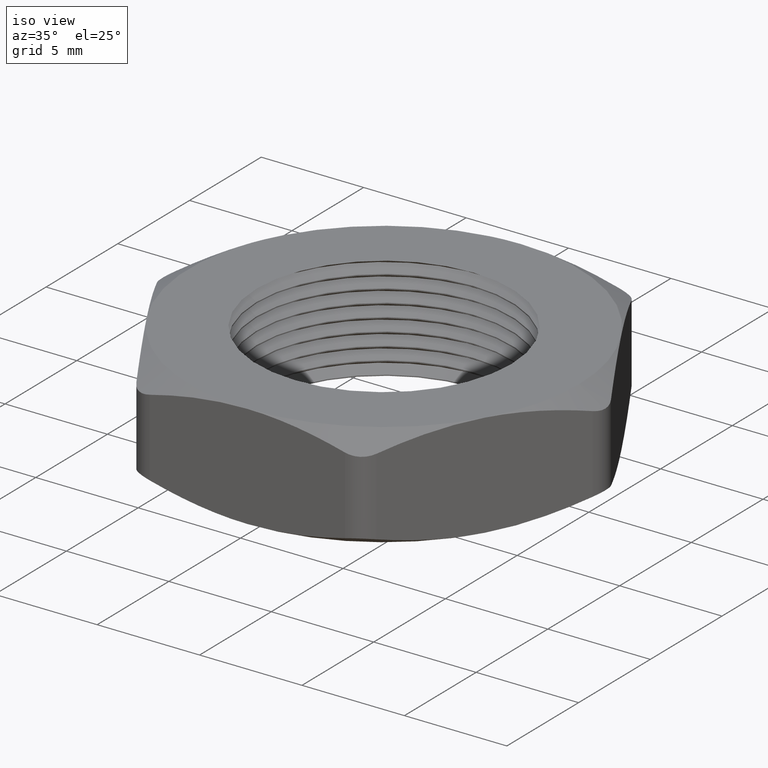
[diagram: clean part render]
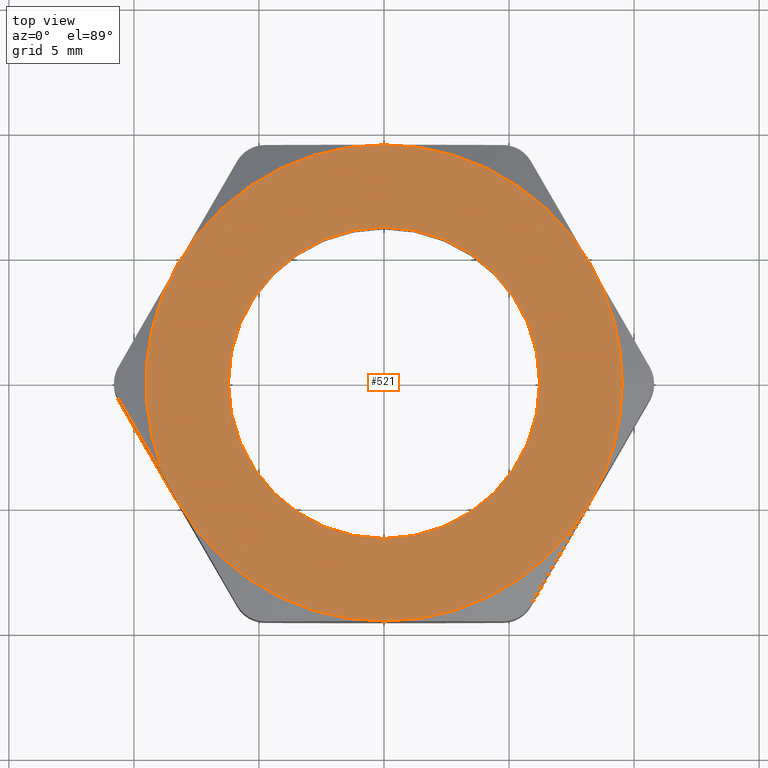
[diagram: tour spotlight — one face highlighted and labeled with its STEP entity id]
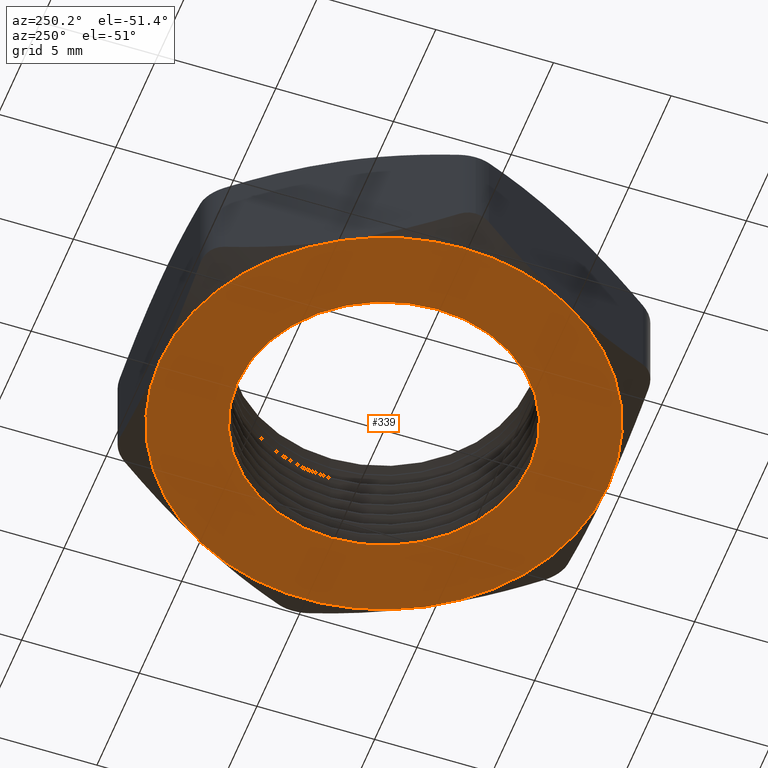
[diagram: tour spotlight — one face highlighted and labeled with its STEP entity id]
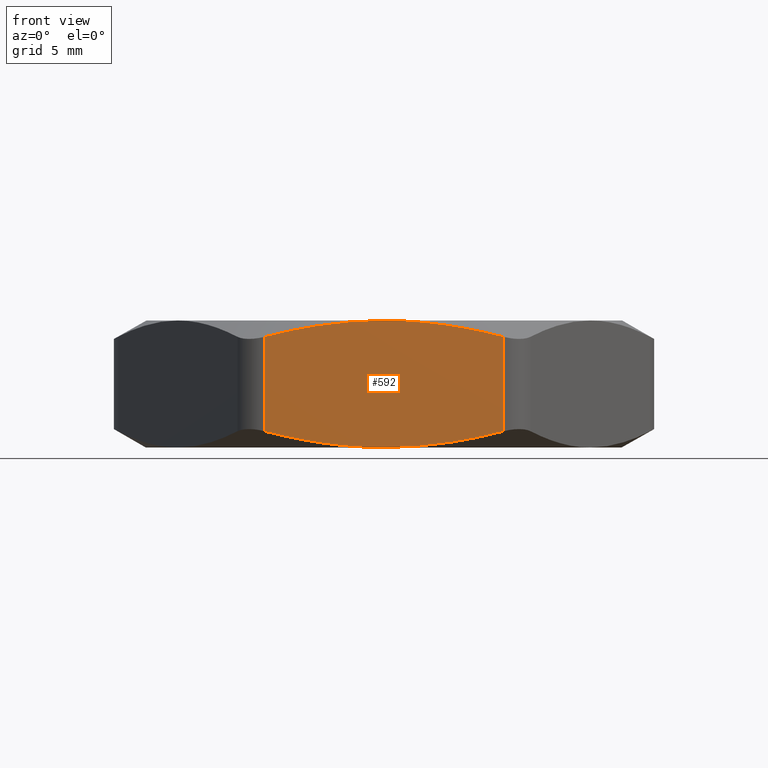
[diagram: tour spotlight — one face highlighted and labeled with its STEP entity id]
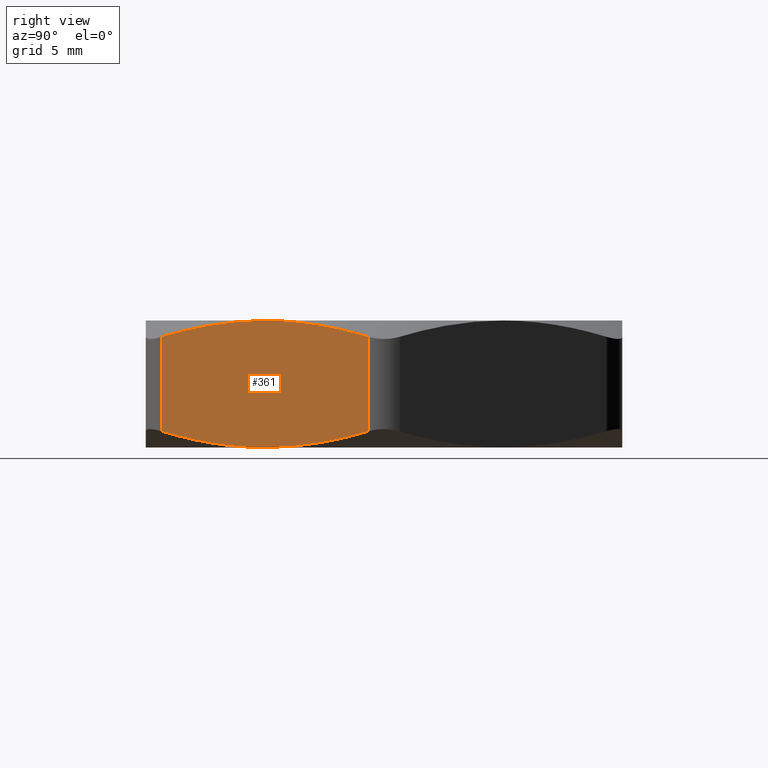
[diagram: tour spotlight — one face highlighted and labeled with its STEP entity id]
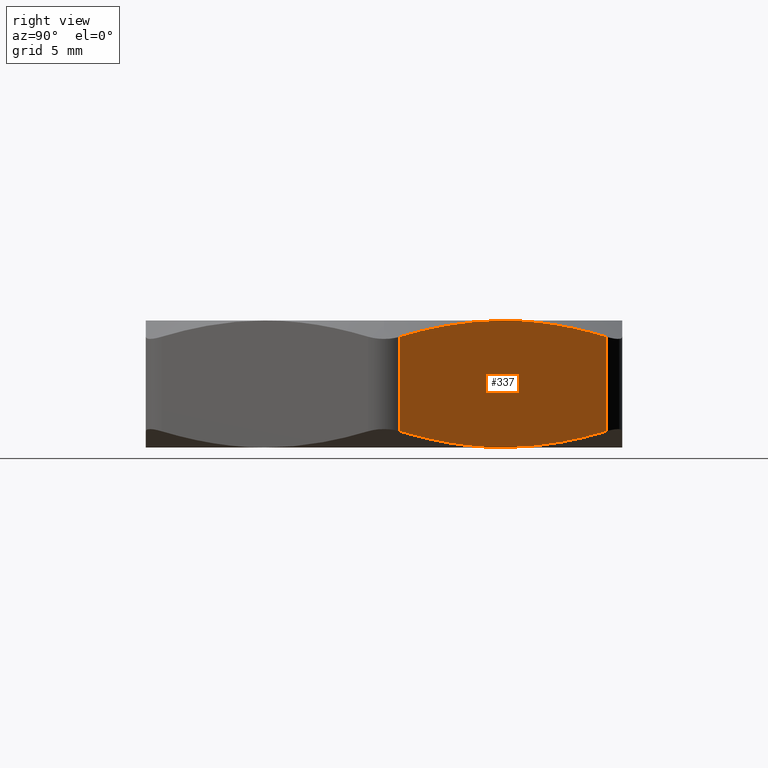
[diagram: tour spotlight — one face highlighted and labeled with its STEP entity id]
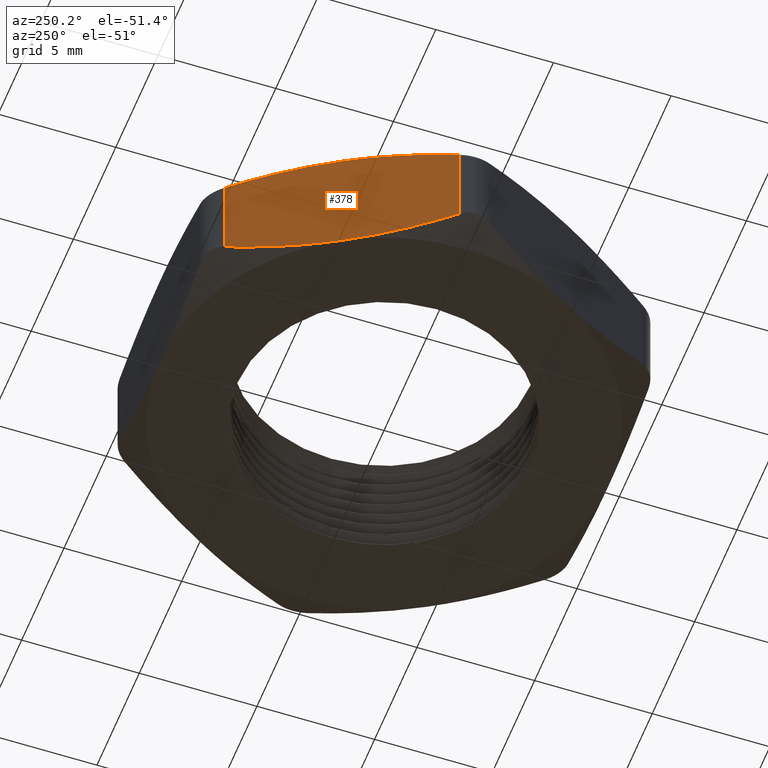
[diagram: tour spotlight — one face highlighted and labeled with its STEP entity id]
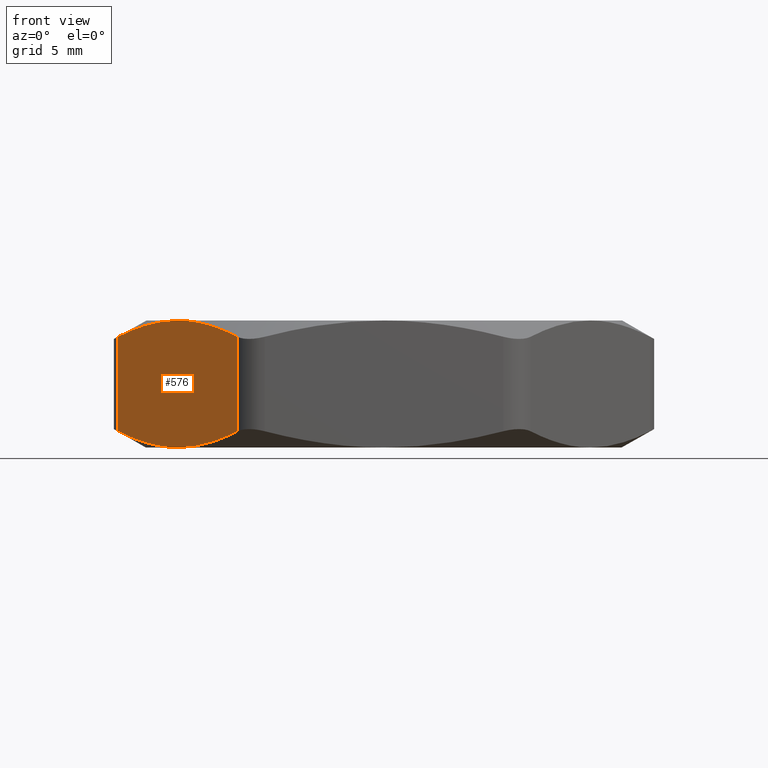
[diagram: tour spotlight — one face highlighted and labeled with its STEP entity id]
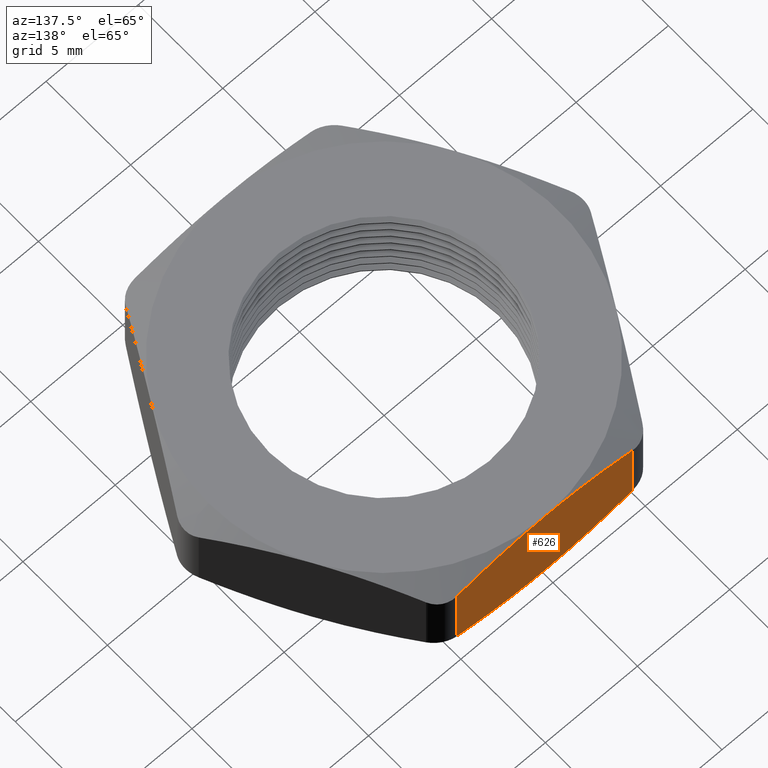
[diagram: tour spotlight — one face highlighted and labeled with its STEP entity id]
A machine part: a face-by-face anatomy tour. The part has 77 B-rep faces; the first image is the clean iso view, then the 8 largest visible faces are spotlighted one at a time (largest first), each with its STEP entity span.

Face 1 — top view, entity #521. In plain terms, the highlighted planar face has unit normal (0, 0, 1).
Definition (entity closure, byte-faithful):
#6 = VERTEX_POINT ( 'NONE', #806 ) ;
#13 = EDGE_CURVE ( 'NONE', #6, #17, #694, .T. ) ;
#17 = VERTEX_POINT ( 'NONE', #724 ) ;
#79 = EDGE_CURVE ( 'NONE', #292, #269, #853, .T. ) ;
#269 = VERTEX_POINT ( 'NONE', #1236 ) ;
#292 = VERTEX_POINT ( 'NONE', #1193 ) ;
#391 = VERTEX_POINT ( 'NONE', #1551 ) ;
#492 = ORIENTED_EDGE ( 'NONE', *, *, #79, .F. ) ;
#493 = ORIENTED_EDGE ( 'NONE', *, *, #494, .F. ) ;
#494 = EDGE_CURVE ( 'NONE', #269, #292, #1731, .T. ) ;
#495 = EDGE_LOOP ( 'NONE', ( #496, #498, #499, #501, #503, #545, #547 ) ) ;
#496 = ORIENTED_EDGE ( 'NONE', *, *, #497, .T. ) ;
#497 = EDGE_CURVE ( 'NONE', #596, #6, #1787, .T. ) ;
#498 = ORIENTED_EDGE ( 'NONE', *, *, #13, .T. ) ;
#499 = ORIENTED_EDGE ( 'NONE', *, *, #500, .T. ) ;
#500 = EDGE_CURVE ( 'NONE', #17, #610, #1782, .T. ) ;
#501 = ORIENTED_EDGE ( 'NONE', *, *, #502, .T. ) ;
#502 = EDGE_CURVE ( 'NONE', #610, #391, #1777, .T. ) ;
#503 = ORIENTED_EDGE ( 'NONE', *, *, #544, .T. ) ;
#521 = ADVANCED_FACE ( 'NONE', ( #1800, #1799 ), #1798, .T. ) ;
#522 = EDGE_LOOP ( 'NONE', ( #492, #493 ) ) ;
#544 = EDGE_CURVE ( 'NONE', #391, #585, #1817, .T. ) ;
#545 = ORIENTED_EDGE ( 'NONE', *, *, #546, .T. ) ;
#546 = EDGE_CURVE ( 'NONE', #585, #561, #1863, .T. ) ;
#547 = ORIENTED_EDGE ( 'NONE', *, *, #548, .T. ) ;
#548 = EDGE_CURVE ( 'NONE', #561, #596, #1858, .T. ) ;
#561 = VERTEX_POINT ( 'NONE', #1886 ) ;
#585 = VERTEX_POINT ( 'NONE', #1928 ) ;
#596 = VERTEX_POINT ( 'NONE', #1963 ) ;
#610 = VERTEX_POINT ( 'NONE', #1984 ) ;
#691 = DIRECTION ( 'NONE',  ( 1.000000000000000000, 0.0000000000000000000, 0.0000000000000000000 ) ) ;
#692 = DIRECTION ( 'NONE',  ( 0.0000000000000000000, 0.0000000000000000000, 1.000000000000000000 ) ) ;
#693 = AXIS2_PLACEMENT_3D ( 'NONE', #701, #692, #691 ) ;
#694 = CIRCLE ( 'NONE', #693, 0.3749999999999999400 ) ;
#701 = CARTESIAN_POINT ( 'NONE',  ( 0.0000000000000000000, 0.0000000000000000000, 0.2000000000000000100 ) ) ;
#724 = CARTESIAN_POINT ( 'NONE',  ( 0.3247595264191646700, 0.1875000000000000800, 0.2000000000000000100 ) ) ;
#806 = CARTESIAN_POINT ( 'NONE',  ( 0.3749999999999999400, 0.0000000000000000000, 0.2000000000000000100 ) ) ;
#853 = CIRCLE ( 'NONE', #882, 0.2450000000000000000 ) ;
#868 = DIRECTION ( 'NONE',  ( 1.000000000000000000, 0.0000000000000000000, 0.0000000000000000000 ) ) ;
#869 = DIRECTION ( 'NONE',  ( 0.0000000000000000000, 0.0000000000000000000, 1.000000000000000000 ) ) ;
#881 = CARTESIAN_POINT ( 'NONE',  ( 0.0000000000000000000, 0.0000000000000000000, 0.2000000000000000100 ) ) ;
#882 = AXIS2_PLACEMENT_3D ( 'NONE', #881, #869, #868 ) ;
#1193 = CARTESIAN_POINT ( 'NONE',  ( -0.2450000000000000000, 0.0000000000000000000, 0.2000000000000000100 ) ) ;
#1236 = CARTESIAN_POINT ( 'NONE',  ( 0.2450000000000000000, 3.122849337825751200E-017, 0.2000000000000000100 ) ) ;
#1551 = CARTESIAN_POINT ( 'NONE',  ( -0.3247595264191646100, 0.1875000000000000600, 0.2000000000000000100 ) ) ;
#1727 = DIRECTION ( 'NONE',  ( 1.000000000000000000, 0.0000000000000000000, 0.0000000000000000000 ) ) ;
#1728 = DIRECTION ( 'NONE',  ( 0.0000000000000000000, 0.0000000000000000000, 1.000000000000000000 ) ) ;
#1729 = CARTESIAN_POINT ( 'NONE',  ( 0.0000000000000000000, 0.0000000000000000000, 0.2000000000000000100 ) ) ;
#1730 = AXIS2_PLACEMENT_3D ( 'NONE', #1729, #1728, #1727 ) ;
#1731 = CIRCLE ( 'NONE', #1730, 0.2450000000000000000 ) ;
#1773 = DIRECTION ( 'NONE',  ( 1.000000000000000000, 0.0000000000000000000, 0.0000000000000000000 ) ) ;
#1774 = DIRECTION ( 'NONE',  ( 0.0000000000000000000, 0.0000000000000000000, 1.000000000000000000 ) ) ;
#1775 = CARTESIAN_POINT ( 'NONE',  ( 0.0000000000000000000, 0.0000000000000000000, 0.2000000000000000100 ) ) ;
#1776 = AXIS2_PLACEMENT_3D ( 'NONE', #1775, #1774, #1773 ) ;
#1777 = CIRCLE ( 'NONE', #1776, 0.3749999999999999400 ) ;
#1778 = DIRECTION ( 'NONE',  ( 1.000000000000000000, 0.0000000000000000000, 0.0000000000000000000 ) ) ;
#1779 = DIRECTION ( 'NONE',  ( 0.0000000000000000000, 0.0000000000000000000, 1.000000000000000000 ) ) ;
#1780 = CARTESIAN_POINT ( 'NONE',  ( 0.0000000000000000000, 0.0000000000000000000, 0.2000000000000000100 ) ) ;
#1781 = AXIS2_PLACEMENT_3D ( 'NONE', #1780, #1779, #1778 ) ;
#1782 = CIRCLE ( 'NONE', #1781, 0.3749999999999999400 ) ;
#1783 = DIRECTION ( 'NONE',  ( 1.000000000000000000, 0.0000000000000000000, 0.0000000000000000000 ) ) ;
#1784 = DIRECTION ( 'NONE',  ( 0.0000000000000000000, 0.0000000000000000000, 1.000000000000000000 ) ) ;
#1785 = CARTESIAN_POINT ( 'NONE',  ( 0.0000000000000000000, 0.0000000000000000000, 0.2000000000000000100 ) ) ;
#1786 = AXIS2_PLACEMENT_3D ( 'NONE', #1785, #1784, #1783 ) ;
#1787 = CIRCLE ( 'NONE', #1786, 0.3749999999999999400 ) ;
#1794 = DIRECTION ( 'NONE',  ( 1.000000000000000000, 0.0000000000000000000, 0.0000000000000000000 ) ) ;
#1795 = DIRECTION ( 'NONE',  ( 0.0000000000000000000, 0.0000000000000000000, 1.000000000000000000 ) ) ;
#1796 = CARTESIAN_POINT ( 'NONE',  ( -0.6495190528383286700, -0.3749999999999996700, 0.2000000000000000100 ) ) ;
#1797 = AXIS2_PLACEMENT_3D ( 'NONE', #1796, #1795, #1794 ) ;
#1798 = PLANE ( 'NONE',  #1797 ) ;
#1799 = FACE_OUTER_BOUND ( 'NONE', #495, .T. ) ;
#1800 = FACE_BOUND ( 'NONE', #522, .T. ) ;
#1817 = CIRCLE ( 'NONE', #1867, 0.3749999999999999400 ) ;
#1854 = DIRECTION ( 'NONE',  ( 1.000000000000000000, 0.0000000000000000000, 0.0000000000000000000 ) ) ;
#1855 = DIRECTION ( 'NONE',  ( 0.0000000000000000000, 0.0000000000000000000, 1.000000000000000000 ) ) ;
#1856 = CARTESIAN_POINT ( 'NONE',  ( 0.0000000000000000000, 0.0000000000000000000, 0.2000000000000000100 ) ) ;
#1857 = AXIS2_PLACEMENT_3D ( 'NONE', #1856, #1855, #1854 ) ;
#1858 = CIRCLE ( 'NONE', #1857, 0.3749999999999999400 ) ;
#1859 = DIRECTION ( 'NONE',  ( 1.000000000000000000, 0.0000000000000000000, 0.0000000000000000000 ) ) ;
#1860 = DIRECTION ( 'NONE',  ( 0.0000000000000000000, 0.0000000000000000000, 1.000000000000000000 ) ) ;
#1861 = CARTESIAN_POINT ( 'NONE',  ( 0.0000000000000000000, 0.0000000000000000000, 0.2000000000000000100 ) ) ;
#1862 = AXIS2_PLACEMENT_3D ( 'NONE', #1861, #1860, #1859 ) ;
#1863 = CIRCLE ( 'NONE', #1862, 0.3749999999999999400 ) ;
#1864 = DIRECTION ( 'NONE',  ( 1.000000000000000000, 0.0000000000000000000, 0.0000000000000000000 ) ) ;
#1865 = DIRECTION ( 'NONE',  ( 0.0000000000000000000, 0.0000000000000000000, 1.000000000000000000 ) ) ;
#1866 = CARTESIAN_POINT ( 'NONE',  ( 0.0000000000000000000, 0.0000000000000000000, 0.2000000000000000100 ) ) ;
#1867 = AXIS2_PLACEMENT_3D ( 'NONE', #1866, #1865, #1864 ) ;
#1886 = CARTESIAN_POINT ( 'NONE',  ( 0.0000000000000000000, -0.3749999999999996700, 0.2000000000000000100 ) ) ;
#1928 = CARTESIAN_POINT ( 'NONE',  ( -0.3247595264191646100, -0.1874999999999999400, 0.2000000000000000100 ) ) ;
#1963 = CARTESIAN_POINT ( 'NONE',  ( 0.3247595264191646700, -0.1875000000000001400, 0.2000000000000000100 ) ) ;
#1984 = CARTESIAN_POINT ( 'NONE',  ( 0.0000000000000000000, 0.3749999999999999400, 0.2000000000000000100 ) ) ;

Face 2 — auxiliary view, entity #339. In plain terms, the highlighted planar face has unit normal (0, 0, 1).
Definition (entity closure, byte-faithful):
#52 = EDGE_CURVE ( 'NONE', #228, #231, #822, .T. ) ;
#228 = VERTEX_POINT ( 'NONE', #1112 ) ;
#230 = EDGE_CURVE ( 'NONE', #231, #228, #1111, .T. ) ;
#231 = VERTEX_POINT ( 'NONE', #1106 ) ;
#264 = EDGE_CURVE ( 'NONE', #265, #266, #1278, .T. ) ;
#265 = VERTEX_POINT ( 'NONE', #1279 ) ;
#266 = VERTEX_POINT ( 'NONE', #1242 ) ;
#339 = ADVANCED_FACE ( 'NONE', ( #1411, #1406 ), #1405, .F. ) ;
#340 = ORIENTED_EDGE ( 'NONE', *, *, #230, .T. ) ;
#341 = ORIENTED_EDGE ( 'NONE', *, *, #52, .T. ) ;
#342 = EDGE_LOOP ( 'NONE', ( #343, #504, #543, #542, #516, #518, #519 ) ) ;
#343 = ORIENTED_EDGE ( 'NONE', *, *, #344, .F. ) ;
#344 = EDGE_CURVE ( 'NONE', #602, #353, #1459, .T. ) ;
#353 = VERTEX_POINT ( 'NONE', #1442 ) ;
#364 = VERTEX_POINT ( 'NONE', #1474 ) ;
#371 = VERTEX_POINT ( 'NONE', #1471 ) ;
#491 = EDGE_CURVE ( 'NONE', #371, #364, #1738, .T. ) ;
#504 = ORIENTED_EDGE ( 'NONE', *, *, #505, .F. ) ;
#505 = EDGE_CURVE ( 'NONE', #364, #602, #1772, .T. ) ;
#515 = EDGE_CURVE ( 'NONE', #581, #371, #1814, .T. ) ;
#516 = ORIENTED_EDGE ( 'NONE', *, *, #517, .F. ) ;
#517 = EDGE_CURVE ( 'NONE', #266, #581, #1810, .T. ) ;
#518 = ORIENTED_EDGE ( 'NONE', *, *, #264, .F. ) ;
#519 = ORIENTED_EDGE ( 'NONE', *, *, #520, .T. ) ;
#520 = EDGE_CURVE ( 'NONE', #265, #353, #1805, .T. ) ;
#542 = ORIENTED_EDGE ( 'NONE', *, *, #515, .F. ) ;
#543 = ORIENTED_EDGE ( 'NONE', *, *, #491, .F. ) ;
#581 = VERTEX_POINT ( 'NONE', #1940 ) ;
#602 = VERTEX_POINT ( 'NONE', #2007 ) ;
#619 = EDGE_LOOP ( 'NONE', ( #340, #341 ) ) ;
#822 = CIRCLE ( 'NONE', #847, 0.2450000000000000000 ) ;
#844 = DIRECTION ( 'NONE',  ( 1.000000000000000000, 0.0000000000000000000, 0.0000000000000000000 ) ) ;
#845 = DIRECTION ( 'NONE',  ( 0.0000000000000000000, 0.0000000000000000000, 1.000000000000000000 ) ) ;
#846 = CARTESIAN_POINT ( 'NONE',  ( 0.0000000000000000000, 0.0000000000000000000, 0.0000000000000000000 ) ) ;
#847 = AXIS2_PLACEMENT_3D ( 'NONE', #846, #845, #844 ) ;
#1106 = CARTESIAN_POINT ( 'NONE',  ( -0.2450000000000000000, 0.0000000000000000000, 0.0000000000000000000 ) ) ;
#1107 = DIRECTION ( 'NONE',  ( 1.000000000000000000, 0.0000000000000000000, 0.0000000000000000000 ) ) ;
#1108 = DIRECTION ( 'NONE',  ( 0.0000000000000000000, 0.0000000000000000000, 1.000000000000000000 ) ) ;
#1109 = CARTESIAN_POINT ( 'NONE',  ( 0.0000000000000000000, 0.0000000000000000000, 0.0000000000000000000 ) ) ;
#1110 = AXIS2_PLACEMENT_3D ( 'NONE', #1109, #1108, #1107 ) ;
#1111 = CIRCLE ( 'NONE', #1110, 0.2450000000000000000 ) ;
#1112 = CARTESIAN_POINT ( 'NONE',  ( 0.2450000000000000000, 3.000384657911014900E-017, 0.0000000000000000000 ) ) ;
#1242 = CARTESIAN_POINT ( 'NONE',  ( -0.3749999999999999400, 0.0000000000000000000, 0.0000000000000000000 ) ) ;
#1274 = DIRECTION ( 'NONE',  ( 1.000000000000000000, 0.0000000000000000000, 0.0000000000000000000 ) ) ;
#1275 = DIRECTION ( 'NONE',  ( 0.0000000000000000000, 0.0000000000000000000, 1.000000000000000000 ) ) ;
#1276 = CARTESIAN_POINT ( 'NONE',  ( 0.0000000000000000000, 0.0000000000000000000, 0.0000000000000000000 ) ) ;
#1277 = AXIS2_PLACEMENT_3D ( 'NONE', #1276, #1275, #1274 ) ;
#1278 = CIRCLE ( 'NONE', #1277, 0.3749999999999999400 ) ;
#1279 = CARTESIAN_POINT ( 'NONE',  ( -0.3247595264191644500, 0.1874999999999999700, 0.0000000000000000000 ) ) ;
#1400 = DIRECTION ( 'NONE',  ( 1.000000000000000000, 0.0000000000000000000, 0.0000000000000000000 ) ) ;
#1401 = DIRECTION ( 'NONE',  ( 0.0000000000000000000, 0.0000000000000000000, 1.000000000000000000 ) ) ;
#1402 = CARTESIAN_POINT ( 'NONE',  ( -0.6495190528383286700, -0.3749999999999996700, 0.0000000000000000000 ) ) ;
#1403 = AXIS2_PLACEMENT_3D ( 'NONE', #1402, #1401, #1400 ) ;
#1404 = CARTESIAN_POINT ( 'NONE',  ( 0.0000000000000000000, 0.0000000000000000000, 0.0000000000000000000 ) ) ;
#1405 = PLANE ( 'NONE',  #1403 ) ;
#1406 = FACE_OUTER_BOUND ( 'NONE', #342, .T. ) ;
#1411 = FACE_BOUND ( 'NONE', #619, .T. ) ;
#1442 = CARTESIAN_POINT ( 'NONE',  ( 0.0000000000000000000, 0.3749999999999999400, 0.0000000000000000000 ) ) ;
#1456 = DIRECTION ( 'NONE',  ( 1.000000000000000000, 0.0000000000000000000, 0.0000000000000000000 ) ) ;
#1457 = DIRECTION ( 'NONE',  ( 0.0000000000000000000, 0.0000000000000000000, 1.000000000000000000 ) ) ;
#1458 = AXIS2_PLACEMENT_3D ( 'NONE', #1404, #1457, #1456 ) ;
#1459 = CIRCLE ( 'NONE', #1458, 0.3749999999999999400 ) ;
#1471 = CARTESIAN_POINT ( 'NONE',  ( 0.0000000000000000000, -0.3749999999999999400, 0.0000000000000000000 ) ) ;
#1474 = CARTESIAN_POINT ( 'NONE',  ( 0.3247595264191644500, -0.1875000000000000600, 0.0000000000000000000 ) ) ;
#1732 = DIRECTION ( 'NONE',  ( 1.000000000000000000, 0.0000000000000000000, 0.0000000000000000000 ) ) ;
#1733 = DIRECTION ( 'NONE',  ( 0.0000000000000000000, 0.0000000000000000000, 1.000000000000000000 ) ) ;
#1734 = CARTESIAN_POINT ( 'NONE',  ( 0.0000000000000000000, 0.0000000000000000000, 0.0000000000000000000 ) ) ;
#1735 = AXIS2_PLACEMENT_3D ( 'NONE', #1734, #1733, #1732 ) ;
#1738 = CIRCLE ( 'NONE', #1735, 0.3749999999999999400 ) ;
#1758 = CARTESIAN_POINT ( 'NONE',  ( 0.0000000000000000000, 0.0000000000000000000, 0.0000000000000000000 ) ) ;
#1768 = DIRECTION ( 'NONE',  ( 1.000000000000000000, 0.0000000000000000000, 0.0000000000000000000 ) ) ;
#1769 = DIRECTION ( 'NONE',  ( 0.0000000000000000000, 0.0000000000000000000, 1.000000000000000000 ) ) ;
#1770 = CARTESIAN_POINT ( 'NONE',  ( 0.0000000000000000000, 0.0000000000000000000, 0.0000000000000000000 ) ) ;
#1771 = AXIS2_PLACEMENT_3D ( 'NONE', #1770, #1769, #1768 ) ;
#1772 = CIRCLE ( 'NONE', #1771, 0.3749999999999999400 ) ;
#1801 = DIRECTION ( 'NONE',  ( -1.000000000000000000, 0.0000000000000000000, 0.0000000000000000000 ) ) ;
#1802 = DIRECTION ( 'NONE',  ( 0.0000000000000000000, 0.0000000000000000000, -1.000000000000000000 ) ) ;
#1803 = CARTESIAN_POINT ( 'NONE',  ( 0.0000000000000000000, 0.0000000000000000000, 0.0000000000000000000 ) ) ;
#1804 = AXIS2_PLACEMENT_3D ( 'NONE', #1803, #1802, #1801 ) ;
#1805 = CIRCLE ( 'NONE', #1804, 0.3749999999999999400 ) ;
#1806 = DIRECTION ( 'NONE',  ( 1.000000000000000000, 0.0000000000000000000, 0.0000000000000000000 ) ) ;
#1807 = DIRECTION ( 'NONE',  ( 0.0000000000000000000, 0.0000000000000000000, 1.000000000000000000 ) ) ;
#1808 = CARTESIAN_POINT ( 'NONE',  ( 0.0000000000000000000, 0.0000000000000000000, 0.0000000000000000000 ) ) ;
#1809 = AXIS2_PLACEMENT_3D ( 'NONE', #1808, #1807, #1806 ) ;
#1810 = CIRCLE ( 'NONE', #1809, 0.3749999999999999400 ) ;
#1811 = DIRECTION ( 'NONE',  ( 1.000000000000000000, 0.0000000000000000000, 0.0000000000000000000 ) ) ;
#1812 = DIRECTION ( 'NONE',  ( 0.0000000000000000000, 0.0000000000000000000, 1.000000000000000000 ) ) ;
#1813 = AXIS2_PLACEMENT_3D ( 'NONE', #1758, #1812, #1811 ) ;
#1814 = CIRCLE ( 'NONE', #1813, 0.3749999999999999400 ) ;
#1940 = CARTESIAN_POINT ( 'NONE',  ( -0.3247595264191645600, -0.1874999999999999200, 0.0000000000000000000 ) ) ;
#2007 = CARTESIAN_POINT ( 'NONE',  ( 0.3247595264191644500, 0.1874999999999999200, 0.0000000000000000000 ) ) ;

Face 3 — front view, entity #592. In plain terms, the highlighted planar face has unit normal (0, 1, 0).
Definition (entity closure, byte-faithful):
#358 = EDGE_CURVE ( 'NONE', #371, #360, #1435, .T. ) ;
#360 = VERTEX_POINT ( 'NONE', #1434 ) ;
#365 = EDGE_LOOP ( 'NONE', ( #368, #372, #562, #558, #559, #555 ) ) ;
#368 = ORIENTED_EDGE ( 'NONE', *, *, #369, .F. ) ;
#369 = EDGE_CURVE ( 'NONE', #370, #371, #1473, .T. ) ;
#370 = VERTEX_POINT ( 'NONE', #1472 ) ;
#371 = VERTEX_POINT ( 'NONE', #1471 ) ;
#372 = ORIENTED_EDGE ( 'NONE', *, *, #373, .T. ) ;
#373 = EDGE_CURVE ( 'NONE', #370, #374, #1464, .T. ) ;
#374 = VERTEX_POINT ( 'NONE', #1460 ) ;
#555 = ORIENTED_EDGE ( 'NONE', *, *, #358, .F. ) ;
#556 = EDGE_CURVE ( 'NONE', #557, #561, #1896, .T. ) ;
#557 = VERTEX_POINT ( 'NONE', #1895 ) ;
#558 = ORIENTED_EDGE ( 'NONE', *, *, #556, .F. ) ;
#559 = ORIENTED_EDGE ( 'NONE', *, *, #605, .T. ) ;
#560 = EDGE_CURVE ( 'NONE', #561, #374, #1885, .T. ) ;
#561 = VERTEX_POINT ( 'NONE', #1886 ) ;
#562 = ORIENTED_EDGE ( 'NONE', *, *, #560, .F. ) ;
#592 = ADVANCED_FACE ( 'NONE', ( #1980 ), #1978, .F. ) ;
#605 = EDGE_CURVE ( 'NONE', #557, #360, #2006, .T. ) ;
#1434 = CARTESIAN_POINT ( 'NONE',  ( -0.1876388374865758400, -0.3749999999999996700, 0.02559096649277545600 ) ) ;
#1435 = B_SPLINE_CURVE_WITH_KNOTS ( 'NONE', 3,
 ( #1491, #1490, #1489, #1488, #1487, #1486, #1485, #1484 ),
 .UNSPECIFIED., .F., .F.,
 ( 4, 2, 2, 4 ),
 ( 0.03361725975087986900, 0.03602257537325734300, 0.03722523318444608000, 0.03842789099563481700 ),
 .UNSPECIFIED. ) ;
#1460 = CARTESIAN_POINT ( 'NONE',  ( 0.1876388374866288200, -0.3749999999999996700, 0.1744090335072106800 ) ) ;
#1461 = DIRECTION ( 'NONE',  ( 0.0000000000000000000, 0.0000000000000000000, 1.000000000000000000 ) ) ;
#1462 = VECTOR ( 'NONE', #1461, 39.37007874015748100 ) ;
#1463 = CARTESIAN_POINT ( 'NONE',  ( 0.1876388374866288000, -0.3749999999999996700, 0.2000000000000000100 ) ) ;
#1464 = LINE ( 'NONE', #1463, #1462 ) ;
#1465 = CARTESIAN_POINT ( 'NONE',  ( 0.0000000000000000000, -0.3749999999999999400, 0.0000000000000000000 ) ) ;
#1466 = CARTESIAN_POINT ( 'NONE',  ( 0.03162575485420007800, -0.3749999999999996700, -1.603360004093967100E-016 ) ) ;
#1467 = CARTESIAN_POINT ( 'NONE',  ( 0.06366563930631705100, -0.3749999999999996100, 0.002396030453633361300 ) ) ;
#1468 = CARTESIAN_POINT ( 'NONE',  ( 0.1263664419338733100, -0.3749999999999996700, 0.01128735819016164900 ) ) ;
#1469 = CARTESIAN_POINT ( 'NONE',  ( 0.1571911844213591500, -0.3749999999999995600, 0.01772476033817103900 ) ) ;
#1470 = CARTESIAN_POINT ( 'NONE',  ( 0.1876388374866287700, -0.3749999999999996700, 0.02559096649278930600 ) ) ;
#1471 = CARTESIAN_POINT ( 'NONE',  ( 0.0000000000000000000, -0.3749999999999999400, 0.0000000000000000000 ) ) ;
#1472 = CARTESIAN_POINT ( 'NONE',  ( 0.1876388374866287700, -0.3749999999999996700, 0.02559096649278930600 ) ) ;
#1473 = B_SPLINE_CURVE_WITH_KNOTS ( 'NONE', 3,
 ( #1470, #1469, #1468, #1467, #1466, #1465 ),
 .UNSPECIFIED., .F., .F.,
 ( 4, 2, 4 ),
 ( 0.02880939611557660500, 0.03121332793322823700, 0.03361725975087986900 ),
 .UNSPECIFIED. ) ;
#1484 = CARTESIAN_POINT ( 'NONE',  ( -0.1876388374865758400, -0.3749999999999996700, 0.02559096649277545600 ) ) ;
#1485 = CARTESIAN_POINT ( 'NONE',  ( -0.1722455309494969900, -0.3749999999999996700, 0.02161407795025634500 ) ) ;
#1486 = CARTESIAN_POINT ( 'NONE',  ( -0.1566949507369401500, -0.3749999999999997800, 0.01799055944235977700 ) ) ;
#1487 = CARTESIAN_POINT ( 'NONE',  ( -0.1255872119684754400, -0.3749999999999996700, 0.01166408474380492000 ) ) ;
#1488 = CARTESIAN_POINT ( 'NONE',  ( -0.1099951275432414200, -0.3749999999999998300, 0.008951718205073061800 ) ) ;
#1489 = CARTESIAN_POINT ( 'NONE',  ( -0.06308929749123595700, -0.3749999999999995600, 0.002343398478373091100 ) ) ;
#1490 = CARTESIAN_POINT ( 'NONE',  ( -0.03164395997495451900, -0.3749999999999995600, -1.548669687814554800E-016 ) ) ;
#1491 = CARTESIAN_POINT ( 'NONE',  ( 0.0000000000000000000, -0.3749999999999999400, 0.0000000000000000000 ) ) ;
#1879 = CARTESIAN_POINT ( 'NONE',  ( 0.1876388374866288200, -0.3749999999999996700, 0.1744090335072106800 ) ) ;
#1880 = CARTESIAN_POINT ( 'NONE',  ( 0.1571911844213593500, -0.3749999999999996700, 0.1822752396618289900 ) ) ;
#1881 = CARTESIAN_POINT ( 'NONE',  ( 0.1263664419338733900, -0.3749999999999996100, 0.1887126418098383500 ) ) ;
#1882 = CARTESIAN_POINT ( 'NONE',  ( 0.06366563930631706500, -0.3749999999999996700, 0.1976039695463666900 ) ) ;
#1883 = CARTESIAN_POINT ( 'NONE',  ( 0.03162575485420007800, -0.3749999999999995600, 0.2000000000000000900 ) ) ;
#1884 = CARTESIAN_POINT ( 'NONE',  ( 0.0000000000000000000, -0.3749999999999996700, 0.2000000000000000100 ) ) ;
#1885 = B_SPLINE_CURVE_WITH_KNOTS ( 'NONE', 3,
 ( #1884, #1883, #1882, #1881, #1880, #1879 ),
 .UNSPECIFIED., .F., .F.,
 ( 4, 2, 4 ),
 ( 0.01563892191650006300, 0.01804255010373624600, 0.02044617829097243300 ),
 .UNSPECIFIED. ) ;
#1886 = CARTESIAN_POINT ( 'NONE',  ( 0.0000000000000000000, -0.3749999999999996700, 0.2000000000000000100 ) ) ;
#1887 = CARTESIAN_POINT ( 'NONE',  ( 0.0000000000000000000, -0.3749999999999996700, 0.2000000000000000100 ) ) ;
#1888 = CARTESIAN_POINT ( 'NONE',  ( -0.03164395997495458200, -0.3749999999999997800, 0.2000000000000002300 ) ) ;
#1889 = CARTESIAN_POINT ( 'NONE',  ( -0.06308929749123604000, -0.3749999999999998300, 0.1976566015216269800 ) ) ;
#1890 = CARTESIAN_POINT ( 'NONE',  ( -0.1099951275432414800, -0.3749999999999997800, 0.1910482817949269700 ) ) ;
#1891 = CARTESIAN_POINT ( 'NONE',  ( -0.1255872119684755300, -0.3749999999999997800, 0.1883359152561951100 ) ) ;
#1892 = CARTESIAN_POINT ( 'NONE',  ( -0.1566949507369402000, -0.3749999999999996700, 0.1820094405576402300 ) ) ;
#1893 = CARTESIAN_POINT ( 'NONE',  ( -0.1722455309494971300, -0.3749999999999996700, 0.1783859220497436800 ) ) ;
#1894 = CARTESIAN_POINT ( 'NONE',  ( -0.1876388374865758400, -0.3749999999999996700, 0.1744090335072245600 ) ) ;
#1895 = CARTESIAN_POINT ( 'NONE',  ( -0.1876388374865758400, -0.3749999999999996700, 0.1744090335072245600 ) ) ;
#1896 = B_SPLINE_CURVE_WITH_KNOTS ( 'NONE', 3,
 ( #1894, #1893, #1892, #1891, #1890, #1889, #1888, #1887 ),
 .UNSPECIFIED., .F., .F.,
 ( 4, 2, 2, 4 ),
 ( 0.01082889828214100500, 0.01203140419073077000, 0.01323391009932053400, 0.01563892191650006300 ),
 .UNSPECIFIED. ) ;
#1966 = DIRECTION ( 'NONE',  ( 0.0000000000000000000, 0.0000000000000000000, 1.000000000000000000 ) ) ;
#1967 = DIRECTION ( 'NONE',  ( 0.0000000000000000000, 1.000000000000000000, 0.0000000000000000000 ) ) ;
#1968 = CARTESIAN_POINT ( 'NONE',  ( -0.2165063509461099300, -0.3749999999999996700, 0.2000000000000000100 ) ) ;
#1977 = AXIS2_PLACEMENT_3D ( 'NONE', #1968, #1967, #1966 ) ;
#1978 = PLANE ( 'NONE',  #1977 ) ;
#1980 = FACE_OUTER_BOUND ( 'NONE', #365, .T. ) ;
#1995 = DIRECTION ( 'NONE',  ( 0.0000000000000000000, 0.0000000000000000000, -1.000000000000000000 ) ) ;
#1996 = VECTOR ( 'NONE', #1995, 39.37007874015748100 ) ;
#1997 = CARTESIAN_POINT ( 'NONE',  ( -0.1876388374866286600, -0.3749999999999996700, 0.2000000000000000100 ) ) ;
#2006 = LINE ( 'NONE', #1997, #1996 ) ;

Face 4 — right view, entity #361. In plain terms, the highlighted planar face has unit normal (-0.866, 0.5, 0).
Definition (entity closure, byte-faithful):
#336 = EDGE_CURVE ( 'NONE', #364, #350, #1421, .T. ) ;
#345 = ORIENTED_EDGE ( 'NONE', *, *, #346, .F. ) ;
#346 = EDGE_CURVE ( 'NONE', #347, #596, #1455, .T. ) ;
#347 = VERTEX_POINT ( 'NONE', #1454 ) ;
#348 = ORIENTED_EDGE ( 'NONE', *, *, #349, .T. ) ;
#349 = EDGE_CURVE ( 'NONE', #347, #350, #1447, .T. ) ;
#350 = VERTEX_POINT ( 'NONE', #1443 ) ;
#351 = ORIENTED_EDGE ( 'NONE', *, *, #336, .F. ) ;
#357 = VERTEX_POINT ( 'NONE', #1436 ) ;
#359 = EDGE_LOOP ( 'NONE', ( #593, #362, #606, #345, #348, #351 ) ) ;
#361 = ADVANCED_FACE ( 'NONE', ( #1433 ), #1482, .F. ) ;
#362 = ORIENTED_EDGE ( 'NONE', *, *, #363, .T. ) ;
#363 = EDGE_CURVE ( 'NONE', #595, #357, #1483, .T. ) ;
#364 = VERTEX_POINT ( 'NONE', #1474 ) ;
#593 = ORIENTED_EDGE ( 'NONE', *, *, #594, .F. ) ;
#594 = EDGE_CURVE ( 'NONE', #595, #364, #1965, .T. ) ;
#595 = VERTEX_POINT ( 'NONE', #1964 ) ;
#596 = VERTEX_POINT ( 'NONE', #1963 ) ;
#606 = ORIENTED_EDGE ( 'NONE', *, *, #607, .F. ) ;
#607 = EDGE_CURVE ( 'NONE', #596, #357, #1994, .T. ) ;
#1412 = CARTESIAN_POINT ( 'NONE',  ( 0.2309401076758507100, -0.3499999999999997000, 0.02559096649278914900 ) ) ;
#1413 = CARTESIAN_POINT ( 'NONE',  ( 0.2462782553154252200, -0.3234335489942640800, 0.01766569020931175300 ) ) ;
#1414 = CARTESIAN_POINT ( 'NONE',  ( 0.2617398379950050000, -0.2966533022278049500, 0.01123079092868736800 ) ) ;
#1415 = CARTESIAN_POINT ( 'NONE',  ( 0.2851822622156477400, -0.2560498324250684000, 0.004597593372874964100 ) ) ;
#1416 = CARTESIAN_POINT ( 'NONE',  ( 0.2930380967724341400, -0.2424431278368589200, 0.002889938155333279500 ) ) ;
#1417 = CARTESIAN_POINT ( 'NONE',  ( 0.3088421535193919300, -0.2150696985854264900, 0.0005901327189830654100 ) ) ;
#1418 = CARTESIAN_POINT ( 'NONE',  ( 0.3168206163786563300, -0.2012505955468789900, -7.983452266640922900E-017 ) ) ;
#1419 = CARTESIAN_POINT ( 'NONE',  ( 0.3247595264191644500, -0.1875000000000000600, 0.0000000000000000000 ) ) ;
#1421 = B_SPLINE_CURVE_WITH_KNOTS ( 'NONE', 3,
 ( #1419, #1418, #1417, #1416, #1415, #1414, #1413, #1412 ),
 .UNSPECIFIED., .F., .F.,
 ( 4, 2, 2, 4 ),
 ( 0.005564589980275976700, 0.006762186791010959700, 0.007959783601745942800, 0.01035497722321590900 ),
 .UNSPECIFIED. ) ;
#1433 = FACE_OUTER_BOUND ( 'NONE', #359, .T. ) ;
#1436 = CARTESIAN_POINT ( 'NONE',  ( 0.4185789451624789000, -0.02500000000000004600, 0.1744090335072106800 ) ) ;
#1443 = CARTESIAN_POINT ( 'NONE',  ( 0.2309401076758507100, -0.3499999999999997000, 0.02559096649278914900 ) ) ;
#1444 = DIRECTION ( 'NONE',  ( 0.0000000000000000000, 0.0000000000000000000, -1.000000000000000000 ) ) ;
#1445 = VECTOR ( 'NONE', #1444, 39.37007874015748100 ) ;
#1446 = CARTESIAN_POINT ( 'NONE',  ( 0.2309401076758507100, -0.3499999999999997000, 0.2000000000000000100 ) ) ;
#1447 = LINE ( 'NONE', #1446, #1445 ) ;
#1448 = CARTESIAN_POINT ( 'NONE',  ( 0.3247595264191646700, -0.1875000000000001400, 0.2000000000000000100 ) ) ;
#1449 = CARTESIAN_POINT ( 'NONE',  ( 0.3088166142333531000, -0.2151139339264344900, 0.2000000000000001200 ) ) ;
#1450 = CARTESIAN_POINT ( 'NONE',  ( 0.2930444559197780100, -0.2424321134705666200, 0.1976226184107979200 ) ) ;
#1451 = CARTESIAN_POINT ( 'NONE',  ( 0.2617931203539623500, -0.2965610144749437100, 0.1887887220796288200 ) ) ;
#1452 = CARTESIAN_POINT ( 'NONE',  ( 0.2463125204502329400, -0.3233742000398487900, 0.1823520147096008300 ) ) ;
#1453 = CARTESIAN_POINT ( 'NONE',  ( 0.2309401076758610700, -0.3499999999999817100, 0.1744090335072160100 ) ) ;
#1454 = CARTESIAN_POINT ( 'NONE',  ( 0.2309401076758610700, -0.3499999999999817100, 0.1744090335072160100 ) ) ;
#1455 = B_SPLINE_CURVE_WITH_KNOTS ( 'NONE', 3,
 ( #1453, #1452, #1451, #1450, #1449, #1448 ),
 .UNSPECIFIED., .F., .F.,
 ( 4, 2, 4 ),
 ( 0.0007545642487503559200, 0.003159577114513156600, 0.005564589980275957600 ),
 .UNSPECIFIED. ) ;
#1474 = CARTESIAN_POINT ( 'NONE',  ( 0.3247595264191644500, -0.1875000000000000600, 0.0000000000000000000 ) ) ;
#1475 = DIRECTION ( 'NONE',  ( 0.0000000000000000000, 0.0000000000000000000, 1.000000000000000000 ) ) ;
#1476 = VECTOR ( 'NONE', #1475, 39.37007874015748100 ) ;
#1477 = CARTESIAN_POINT ( 'NONE',  ( 0.4185789451624789000, -0.02500000000000007400, 0.2000000000000000100 ) ) ;
#1478 = DIRECTION ( 'NONE',  ( -0.5000000000000001100, -0.8660254037844386000, 0.0000000000000000000 ) ) ;
#1479 = DIRECTION ( 'NONE',  ( -0.8660254037844386000, 0.5000000000000001100, 0.0000000000000000000 ) ) ;
#1480 = CARTESIAN_POINT ( 'NONE',  ( 0.2165063509461100700, -0.3749999999999996700, 0.2000000000000000100 ) ) ;
#1481 = AXIS2_PLACEMENT_3D ( 'NONE', #1480, #1479, #1478 ) ;
#1482 = PLANE ( 'NONE',  #1481 ) ;
#1483 = LINE ( 'NONE', #1477, #1476 ) ;
#1957 = CARTESIAN_POINT ( 'NONE',  ( 0.3247595264191644500, -0.1875000000000000600, 0.0000000000000000000 ) ) ;
#1958 = CARTESIAN_POINT ( 'NONE',  ( 0.3407024386049761800, -0.1598860660735657000, -8.463659921777222100E-017 ) ) ;
#1959 = CARTESIAN_POINT ( 'NONE',  ( 0.3564745969185512700, -0.1325678865294335800, 0.002377381589202024400 ) ) ;
#1960 = CARTESIAN_POINT ( 'NONE',  ( 0.3877259324843672100, -0.07843898552505634800, 0.01121127792037132800 ) ) ;
#1961 = CARTESIAN_POINT ( 'NONE',  ( 0.4032065323880965600, -0.05162579996015110400, 0.01764798529039927600 ) ) ;
#1962 = CARTESIAN_POINT ( 'NONE',  ( 0.4185789451624685200, -0.02500000000001804300, 0.02559096649278417400 ) ) ;
#1963 = CARTESIAN_POINT ( 'NONE',  ( 0.3247595264191646700, -0.1875000000000001400, 0.2000000000000000100 ) ) ;
#1964 = CARTESIAN_POINT ( 'NONE',  ( 0.4185789451624685200, -0.02500000000001804300, 0.02559096649278417400 ) ) ;
#1965 = B_SPLINE_CURVE_WITH_KNOTS ( 'NONE', 3,
 ( #1962, #1961, #1960, #1959, #1958, #1957 ),
 .UNSPECIFIED., .F., .F.,
 ( 4, 2, 4 ),
 ( 0.0007545642487503559200, 0.003159577114513166100, 0.005564589980275976700 ),
 .UNSPECIFIED. ) ;
#1986 = CARTESIAN_POINT ( 'NONE',  ( 0.4185789451624789000, -0.02500000000000004600, 0.1744090335072106800 ) ) ;
#1987 = CARTESIAN_POINT ( 'NONE',  ( 0.4032407975229044800, -0.05156645100573585500, 0.1823343097906881300 ) ) ;
#1988 = CARTESIAN_POINT ( 'NONE',  ( 0.3877792148433245600, -0.07834669777219512000, 0.1887692090713125600 ) ) ;
#1989 = CARTESIAN_POINT ( 'NONE',  ( 0.3643367906226817600, -0.1189501675749317000, 0.1954024066271250200 ) ) ;
#1990 = CARTESIAN_POINT ( 'NONE',  ( 0.3564809560658950300, -0.1325568721631411300, 0.1971100618446666200 ) ) ;
#1991 = CARTESIAN_POINT ( 'NONE',  ( 0.3406768993189374100, -0.1599303014145737600, 0.1994098672810169500 ) ) ;
#1992 = CARTESIAN_POINT ( 'NONE',  ( 0.3326984364596729500, -0.1737494044531211800, 0.2000000000000000900 ) ) ;
#1993 = CARTESIAN_POINT ( 'NONE',  ( 0.3247595264191646700, -0.1875000000000001400, 0.2000000000000000100 ) ) ;
#1994 = B_SPLINE_CURVE_WITH_KNOTS ( 'NONE', 3,
 ( #1993, #1992, #1991, #1990, #1989, #1988, #1987, #1986 ),
 .UNSPECIFIED., .F., .F.,
 ( 4, 2, 2, 4 ),
 ( 0.005564589980275957600, 0.006762186791010945000, 0.007959783601745932400, 0.01035497722321590900 ),
 .UNSPECIFIED. ) ;

Face 5 — right view, entity #337. In plain terms, the highlighted planar face has unit normal (-0.866, -0.5, 0).
Definition (entity closure, byte-faithful):
#17 = VERTEX_POINT ( 'NONE', #724 ) ;
#255 = VERTEX_POINT ( 'NONE', #1168 ) ;
#256 = EDGE_CURVE ( 'NONE', #255, #17, #1302, .T. ) ;
#337 = ADVANCED_FACE ( 'NONE', ( #1422 ), #1420, .F. ) ;
#338 = ORIENTED_EDGE ( 'NONE', *, *, #256, .F. ) ;
#352 = EDGE_LOOP ( 'NONE', ( #338, #597, #600, #603, #621, #624 ) ) ;
#597 = ORIENTED_EDGE ( 'NONE', *, *, #598, .T. ) ;
#598 = EDGE_CURVE ( 'NONE', #255, #599, #1956, .T. ) ;
#599 = VERTEX_POINT ( 'NONE', #1952 ) ;
#600 = ORIENTED_EDGE ( 'NONE', *, *, #601, .F. ) ;
#601 = EDGE_CURVE ( 'NONE', #602, #599, #2008, .T. ) ;
#602 = VERTEX_POINT ( 'NONE', #2007 ) ;
#603 = ORIENTED_EDGE ( 'NONE', *, *, #620, .F. ) ;
#604 = VERTEX_POINT ( 'NONE', #2009 ) ;
#620 = EDGE_CURVE ( 'NONE', #604, #602, #2066, .T. ) ;
#621 = ORIENTED_EDGE ( 'NONE', *, *, #622, .T. ) ;
#622 = EDGE_CURVE ( 'NONE', #604, #623, #2065, .T. ) ;
#623 = VERTEX_POINT ( 'NONE', #2055 ) ;
#624 = ORIENTED_EDGE ( 'NONE', *, *, #625, .F. ) ;
#625 = EDGE_CURVE ( 'NONE', #17, #623, #2053, .T. ) ;
#724 = CARTESIAN_POINT ( 'NONE',  ( 0.3247595264191646700, 0.1875000000000000800, 0.2000000000000000100 ) ) ;
#1168 = CARTESIAN_POINT ( 'NONE',  ( 0.4185789451624685200, 0.02500000000001794500, 0.1744090335072158400 ) ) ;
#1292 = CARTESIAN_POINT ( 'NONE',  ( 0.3247595264191646700, 0.1875000000000000800, 0.2000000000000000100 ) ) ;
#1293 = CARTESIAN_POINT ( 'NONE',  ( 0.3407024386049762900, 0.1598860660735655600, 0.2000000000000001200 ) ) ;
#1294 = CARTESIAN_POINT ( 'NONE',  ( 0.3564745969185513800, 0.1325678865294334400, 0.1976226184107980100 ) ) ;
#1295 = CARTESIAN_POINT ( 'NONE',  ( 0.3877259324843672100, 0.07843898552505621000, 0.1887887220796286800 ) ) ;
#1296 = CARTESIAN_POINT ( 'NONE',  ( 0.4032065323880965600, 0.05162579996015097300, 0.1823520147096006900 ) ) ;
#1297 = CARTESIAN_POINT ( 'NONE',  ( 0.4185789451624685200, 0.02500000000001794500, 0.1744090335072158400 ) ) ;
#1302 = B_SPLINE_CURVE_WITH_KNOTS ( 'NONE', 3,
 ( #1297, #1296, #1295, #1294, #1293, #1292 ),
 .UNSPECIFIED., .F., .F.,
 ( 4, 2, 4 ),
 ( 0.0007545642487503564600, 0.003159577114513165200, 0.005564589980275974100 ),
 .UNSPECIFIED. ) ;
#1407 = DIRECTION ( 'NONE',  ( 0.4999999999999998900, -0.8660254037844386000, 0.0000000000000000000 ) ) ;
#1408 = DIRECTION ( 'NONE',  ( -0.8660254037844387100, -0.4999999999999999400, 0.0000000000000000000 ) ) ;
#1409 = CARTESIAN_POINT ( 'NONE',  ( 0.4330127018922195800, -5.742889578519527100E-017, 0.2000000000000000100 ) ) ;
#1410 = AXIS2_PLACEMENT_3D ( 'NONE', #1409, #1408, #1407 ) ;
#1420 = PLANE ( 'NONE',  #1410 ) ;
#1422 = FACE_OUTER_BOUND ( 'NONE', #352, .T. ) ;
#1952 = CARTESIAN_POINT ( 'NONE',  ( 0.4185789451624789000, 0.02500000000000000500, 0.02559096649278931600 ) ) ;
#1953 = DIRECTION ( 'NONE',  ( 0.0000000000000000000, 0.0000000000000000000, -1.000000000000000000 ) ) ;
#1954 = VECTOR ( 'NONE', #1953, 39.37007874015748100 ) ;
#1955 = CARTESIAN_POINT ( 'NONE',  ( 0.4185789451624789000, 0.02499999999999996300, 0.2000000000000000100 ) ) ;
#1956 = LINE ( 'NONE', #1955, #1954 ) ;
#1998 = CARTESIAN_POINT ( 'NONE',  ( 0.4185789451624789000, 0.02500000000000000500, 0.02559096649278931600 ) ) ;
#1999 = CARTESIAN_POINT ( 'NONE',  ( 0.4032407975229044300, 0.05156645100573577900, 0.01766569020931187500 ) ) ;
#2000 = CARTESIAN_POINT ( 'NONE',  ( 0.3877792148433244500, 0.07834669777219500900, 0.01123079092868745300 ) ) ;
#2001 = CARTESIAN_POINT ( 'NONE',  ( 0.3643367906226817100, 0.1189501675749315800, 0.004597593372875003100 ) ) ;
#2002 = CARTESIAN_POINT ( 'NONE',  ( 0.3564809560658953000, 0.1325568721631411600, 0.002889938155333290400 ) ) ;
#2003 = CARTESIAN_POINT ( 'NONE',  ( 0.3406768993189374100, 0.1599303014145737300, 0.0005901327189830636700 ) ) ;
#2004 = CARTESIAN_POINT ( 'NONE',  ( 0.3326984364596729500, 0.1737494044531212000, -1.114982149269587900E-016 ) ) ;
#2005 = CARTESIAN_POINT ( 'NONE',  ( 0.3247595264191644500, 0.1874999999999999200, 0.0000000000000000000 ) ) ;
#2007 = CARTESIAN_POINT ( 'NONE',  ( 0.3247595264191644500, 0.1874999999999999200, 0.0000000000000000000 ) ) ;
#2008 = B_SPLINE_CURVE_WITH_KNOTS ( 'NONE', 3,
 ( #2005, #2004, #2003, #2002, #2001, #2000, #1999, #1998 ),
 .UNSPECIFIED., .F., .F.,
 ( 4, 2, 2, 4 ),
 ( 0.005564589980275968000, 0.006762186791010953700, 0.007959783601745939300, 0.01035497722321591600 ),
 .UNSPECIFIED. ) ;
#2009 = CARTESIAN_POINT ( 'NONE',  ( 0.2309401076758609300, 0.3499999999999819900, 0.02559096649278410800 ) ) ;
#2044 = CARTESIAN_POINT ( 'NONE',  ( 0.2309401076758505200, 0.3500000000000000300, 0.1744090335072107600 ) ) ;
#2045 = CARTESIAN_POINT ( 'NONE',  ( 0.2462782553154250800, 0.3234335489942644100, 0.1823343097906882400 ) ) ;
#2046 = CARTESIAN_POINT ( 'NONE',  ( 0.2617398379950048900, 0.2966533022278050600, 0.1887692090713125900 ) ) ;
#2047 = CARTESIAN_POINT ( 'NONE',  ( 0.2851822622156476900, 0.2560498324250685100, 0.1954024066271250200 ) ) ;
#2048 = CARTESIAN_POINT ( 'NONE',  ( 0.2930380967724341400, 0.2424431278368589500, 0.1971100618446667000 ) ) ;
#2049 = CARTESIAN_POINT ( 'NONE',  ( 0.3088421535193919800, 0.2150696985854264300, 0.1994098672810170100 ) ) ;
#2050 = CARTESIAN_POINT ( 'NONE',  ( 0.3168206163786565500, 0.2012505955468789600, 0.2000000000000000400 ) ) ;
#2051 = CARTESIAN_POINT ( 'NONE',  ( 0.3247595264191646700, 0.1875000000000000800, 0.2000000000000000100 ) ) ;
#2053 = B_SPLINE_CURVE_WITH_KNOTS ( 'NONE', 3,
 ( #2051, #2050, #2049, #2048, #2047, #2046, #2045, #2044 ),
 .UNSPECIFIED., .F., .F.,
 ( 4, 2, 2, 4 ),
 ( 0.005564589980275974100, 0.006762186791010959700, 0.007959783601745946300, 0.01035497722321591900 ),
 .UNSPECIFIED. ) ;
#2055 = CARTESIAN_POINT ( 'NONE',  ( 0.2309401076758505200, 0.3500000000000000300, 0.1744090335072107600 ) ) ;
#2056 = DIRECTION ( 'NONE',  ( 0.0000000000000000000, 0.0000000000000000000, 1.000000000000000000 ) ) ;
#2057 = VECTOR ( 'NONE', #2056, 39.37007874015748100 ) ;
#2058 = CARTESIAN_POINT ( 'NONE',  ( 0.3247595264191644500, 0.1874999999999999200, 0.0000000000000000000 ) ) ;
#2059 = CARTESIAN_POINT ( 'NONE',  ( 0.3088166142333531600, 0.2151139339264345200, -1.101809786507168700E-016 ) ) ;
#2060 = CARTESIAN_POINT ( 'NONE',  ( 0.2930444559197779600, 0.2424321134705666200, 0.002377381589202010100 ) ) ;
#2061 = CARTESIAN_POINT ( 'NONE',  ( 0.2617931203539623500, 0.2965610144749438200, 0.01121127792037128700 ) ) ;
#2062 = CARTESIAN_POINT ( 'NONE',  ( 0.2463125204502328900, 0.3233742000398488500, 0.01764798529039923000 ) ) ;
#2063 = CARTESIAN_POINT ( 'NONE',  ( 0.2309401076758609300, 0.3499999999999819900, 0.02559096649278410800 ) ) ;
#2064 = CARTESIAN_POINT ( 'NONE',  ( 0.2309401076758505500, 0.3499999999999999800, 0.2000000000000000100 ) ) ;
#2065 = LINE ( 'NONE', #2064, #2057 ) ;
#2066 = B_SPLINE_CURVE_WITH_KNOTS ( 'NONE', 3,
 ( #2063, #2062, #2061, #2060, #2059, #2058 ),
 .UNSPECIFIED., .F., .F.,
 ( 4, 2, 4 ),
 ( 0.0007545642487503553800, 0.003159577114513161800, 0.005564589980275968000 ),
 .UNSPECIFIED. ) ;

Face 6 — auxiliary view, entity #378. In plain terms, the highlighted planar face has unit normal (0.866, -0.5, 0).
Definition (entity closure, byte-faithful):
#2 = VERTEX_POINT ( 'NONE', #813 ) ;
#7 = EDGE_CURVE ( 'NONE', #2, #265, #709, .T. ) ;
#265 = VERTEX_POINT ( 'NONE', #1279 ) ;
#378 = ADVANCED_FACE ( 'NONE', ( #1518 ), #1517, .F. ) ;
#379 = EDGE_LOOP ( 'NONE', ( #380, #386, #389, #392, #571, #574 ) ) ;
#380 = ORIENTED_EDGE ( 'NONE', *, *, #7, .F. ) ;
#386 = ORIENTED_EDGE ( 'NONE', *, *, #387, .T. ) ;
#387 = EDGE_CURVE ( 'NONE', #2, #388, #1496, .T. ) ;
#388 = VERTEX_POINT ( 'NONE', #1492 ) ;
#389 = ORIENTED_EDGE ( 'NONE', *, *, #390, .F. ) ;
#390 = EDGE_CURVE ( 'NONE', #391, #388, #1552, .T. ) ;
#391 = VERTEX_POINT ( 'NONE', #1551 ) ;
#392 = ORIENTED_EDGE ( 'NONE', *, *, #393, .F. ) ;
#393 = EDGE_CURVE ( 'NONE', #394, #391, #1541, .T. ) ;
#394 = VERTEX_POINT ( 'NONE', #1540 ) ;
#571 = ORIENTED_EDGE ( 'NONE', *, *, #572, .T. ) ;
#572 = EDGE_CURVE ( 'NONE', #394, #573, #1909, .T. ) ;
#573 = VERTEX_POINT ( 'NONE', #1905 ) ;
#574 = ORIENTED_EDGE ( 'NONE', *, *, #575, .F. ) ;
#575 = EDGE_CURVE ( 'NONE', #265, #573, #1903, .T. ) ;
#703 = CARTESIAN_POINT ( 'NONE',  ( -0.3247595264191644500, 0.1874999999999999700, 0.0000000000000000000 ) ) ;
#704 = CARTESIAN_POINT ( 'NONE',  ( -0.3407024386049759500, 0.1598860660735655100, -2.383030488613870000E-016 ) ) ;
#705 = CARTESIAN_POINT ( 'NONE',  ( -0.3564745969185511000, 0.1325678865294334100, 0.002377381589201893500 ) ) ;
#706 = CARTESIAN_POINT ( 'NONE',  ( -0.3877259324843668200, 0.07843898552505626500, 0.01121127792037118600 ) ) ;
#707 = CARTESIAN_POINT ( 'NONE',  ( -0.4032065323880963400, 0.05162579996015106300, 0.01764798529039912600 ) ) ;
#708 = CARTESIAN_POINT ( 'NONE',  ( -0.4185789451624682400, 0.02500000000001802500, 0.02559096649278401100 ) ) ;
#709 = B_SPLINE_CURVE_WITH_KNOTS ( 'NONE', 3,
 ( #708, #707, #706, #705, #704, #703 ),
 .UNSPECIFIED., .F., .F.,
 ( 4, 2, 4 ),
 ( 0.0007545642487503557000, 0.003159577114513162200, 0.005564589980275968900 ),
 .UNSPECIFIED. ) ;
#813 = CARTESIAN_POINT ( 'NONE',  ( -0.4185789451624682400, 0.02500000000001802500, 0.02559096649278401100 ) ) ;
#1279 = CARTESIAN_POINT ( 'NONE',  ( -0.3247595264191644500, 0.1874999999999999700, 0.0000000000000000000 ) ) ;
#1492 = CARTESIAN_POINT ( 'NONE',  ( -0.4185789451624786200, 0.02500000000000002900, 0.1744090335072108200 ) ) ;
#1493 = DIRECTION ( 'NONE',  ( 0.0000000000000000000, 0.0000000000000000000, 1.000000000000000000 ) ) ;
#1494 = VECTOR ( 'NONE', #1493, 39.37007874015748100 ) ;
#1495 = CARTESIAN_POINT ( 'NONE',  ( -0.4185789451624786200, 0.02500000000000007400, 0.2000000000000000100 ) ) ;
#1496 = LINE ( 'NONE', #1495, #1494 ) ;
#1513 = DIRECTION ( 'NONE',  ( 0.5000000000000000000, 0.8660254037844386000, 0.0000000000000000000 ) ) ;
#1514 = DIRECTION ( 'NONE',  ( 0.8660254037844387100, -0.5000000000000001100, 0.0000000000000000000 ) ) ;
#1515 = CARTESIAN_POINT ( 'NONE',  ( -0.2165063509461096500, 0.3749999999999999400, 0.2000000000000000100 ) ) ;
#1516 = AXIS2_PLACEMENT_3D ( 'NONE', #1515, #1514, #1513 ) ;
#1517 = PLANE ( 'NONE',  #1516 ) ;
#1518 = FACE_OUTER_BOUND ( 'NONE', #379, .T. ) ;
#1533 = CARTESIAN_POINT ( 'NONE',  ( -0.3247595264191646100, 0.1875000000000000600, 0.2000000000000000100 ) ) ;
#1534 = CARTESIAN_POINT ( 'NONE',  ( -0.3088166142333530500, 0.2151139339264344400, 0.2000000000000002900 ) ) ;
#1535 = CARTESIAN_POINT ( 'NONE',  ( -0.2930444559197777400, 0.2424321134705666200, 0.1976226184107980600 ) ) ;
#1536 = CARTESIAN_POINT ( 'NONE',  ( -0.2617931203539620700, 0.2965610144749438200, 0.1887887220796288800 ) ) ;
#1537 = CARTESIAN_POINT ( 'NONE',  ( -0.2463125204502325800, 0.3233742000398488500, 0.1823520147096008300 ) ) ;
#1538 = CARTESIAN_POINT ( 'NONE',  ( -0.2309401076758606500, 0.3499999999999819900, 0.1744090335072160100 ) ) ;
#1540 = CARTESIAN_POINT ( 'NONE',  ( -0.2309401076758606500, 0.3499999999999819900, 0.1744090335072160100 ) ) ;
#1541 = B_SPLINE_CURVE_WITH_KNOTS ( 'NONE', 3,
 ( #1538, #1537, #1536, #1535, #1534, #1533 ),
 .UNSPECIFIED., .F., .F.,
 ( 4, 2, 4 ),
 ( 0.0007545642487503560300, 0.003159577114513163100, 0.005564589980275970600 ),
 .UNSPECIFIED. ) ;
#1543 = CARTESIAN_POINT ( 'NONE',  ( -0.4185789451624786200, 0.02500000000000002900, 0.1744090335072108200 ) ) ;
#1544 = CARTESIAN_POINT ( 'NONE',  ( -0.4032407975229040400, 0.05156645100573577200, 0.1823343097906882400 ) ) ;
#1545 = CARTESIAN_POINT ( 'NONE',  ( -0.3877792148433242800, 0.07834669777219503700, 0.1887692090713127300 ) ) ;
#1546 = CARTESIAN_POINT ( 'NONE',  ( -0.3643367906226815900, 0.1189501675749315400, 0.1954024066271251600 ) ) ;
#1547 = CARTESIAN_POINT ( 'NONE',  ( -0.3564809560658948100, 0.1325568721631411000, 0.1971100618446669200 ) ) ;
#1548 = CARTESIAN_POINT ( 'NONE',  ( -0.3406768993189373000, 0.1599303014145736800, 0.1994098672810170600 ) ) ;
#1549 = CARTESIAN_POINT ( 'NONE',  ( -0.3326984364596727300, 0.1737494044531211200, 0.2000000000000002600 ) ) ;
#1550 = CARTESIAN_POINT ( 'NONE',  ( -0.3247595264191646100, 0.1875000000000000600, 0.2000000000000000100 ) ) ;
#1551 = CARTESIAN_POINT ( 'NONE',  ( -0.3247595264191646100, 0.1875000000000000600, 0.2000000000000000100 ) ) ;
#1552 = B_SPLINE_CURVE_WITH_KNOTS ( 'NONE', 3,
 ( #1550, #1549, #1548, #1547, #1546, #1545, #1544, #1543 ),
 .UNSPECIFIED., .F., .F.,
 ( 4, 2, 2, 4 ),
 ( 0.005564589980275970600, 0.006762186791010957100, 0.007959783601745942800, 0.01035497722321591800 ),
 .UNSPECIFIED. ) ;
#1899 = CARTESIAN_POINT ( 'NONE',  ( -0.3088421535193916500, 0.2150696985854263200, 0.0005901327189829404000 ) ) ;
#1900 = CARTESIAN_POINT ( 'NONE',  ( -0.3168206163786562700, 0.2012505955468789600, -2.396591908504290600E-016 ) ) ;
#1901 = CARTESIAN_POINT ( 'NONE',  ( -0.3247595264191644500, 0.1874999999999999700, 0.0000000000000000000 ) ) ;
#1903 = B_SPLINE_CURVE_WITH_KNOTS ( 'NONE', 3,
 ( #1901, #1900, #1899, #1951, #1950, #1949, #1948, #1947 ),
 .UNSPECIFIED., .F., .F.,
 ( 4, 2, 2, 4 ),
 ( 0.005564589980275968900, 0.006762186791010954500, 0.007959783601745941100, 0.01035497722321591400 ),
 .UNSPECIFIED. ) ;
#1905 = CARTESIAN_POINT ( 'NONE',  ( -0.2309401076758503000, 0.3499999999999999800, 0.02559096649278914900 ) ) ;
#1906 = DIRECTION ( 'NONE',  ( 0.0000000000000000000, 0.0000000000000000000, -1.000000000000000000 ) ) ;
#1907 = VECTOR ( 'NONE', #1906, 39.37007874015748100 ) ;
#1908 = CARTESIAN_POINT ( 'NONE',  ( -0.2309401076758503000, 0.3499999999999999800, 0.2000000000000000100 ) ) ;
#1909 = LINE ( 'NONE', #1908, #1907 ) ;
#1947 = CARTESIAN_POINT ( 'NONE',  ( -0.2309401076758503000, 0.3499999999999999800, 0.02559096649278914900 ) ) ;
#1948 = CARTESIAN_POINT ( 'NONE',  ( -0.2462782553154248500, 0.3234335489942643000, 0.01766569020931172200 ) ) ;
#1949 = CARTESIAN_POINT ( 'NONE',  ( -0.2617398379950047200, 0.2966533022278050000, 0.01123079092868729300 ) ) ;
#1950 = CARTESIAN_POINT ( 'NONE',  ( -0.2851822622156474600, 0.2560498324250684000, 0.004597593372874849600 ) ) ;
#1951 = CARTESIAN_POINT ( 'NONE',  ( -0.2930380967724339800, 0.2424431278368588700, 0.002889938155333165000 ) ) ;

Face 7 — front view, entity #576. In plain terms, the highlighted planar face has unit normal (0.866, 0.5, 0).
Definition (entity closure, byte-faithful):
#70 = VERTEX_POINT ( 'NONE', #874 ) ;
#285 = VERTEX_POINT ( 'NONE', #1214 ) ;
#287 = EDGE_CURVE ( 'NONE', #70, #285, #1207, .T. ) ;
#567 = ORIENTED_EDGE ( 'NONE', *, *, #568, .F. ) ;
#568 = EDGE_CURVE ( 'NONE', #585, #584, #1923, .T. ) ;
#569 = ORIENTED_EDGE ( 'NONE', *, *, #588, .F. ) ;
#576 = ADVANCED_FACE ( 'NONE', ( #1904 ), #1902, .F. ) ;
#577 = EDGE_LOOP ( 'NONE', ( #578, #582, #567, #569, #589, #590 ) ) ;
#578 = ORIENTED_EDGE ( 'NONE', *, *, #579, .F. ) ;
#579 = EDGE_CURVE ( 'NONE', #580, #581, #1942, .T. ) ;
#580 = VERTEX_POINT ( 'NONE', #1941 ) ;
#581 = VERTEX_POINT ( 'NONE', #1940 ) ;
#582 = ORIENTED_EDGE ( 'NONE', *, *, #583, .T. ) ;
#583 = EDGE_CURVE ( 'NONE', #580, #584, #1933, .T. ) ;
#584 = VERTEX_POINT ( 'NONE', #1929 ) ;
#585 = VERTEX_POINT ( 'NONE', #1928 ) ;
#588 = EDGE_CURVE ( 'NONE', #70, #585, #1927, .T. ) ;
#589 = ORIENTED_EDGE ( 'NONE', *, *, #287, .T. ) ;
#590 = ORIENTED_EDGE ( 'NONE', *, *, #591, .F. ) ;
#591 = EDGE_CURVE ( 'NONE', #581, #285, #1979, .T. ) ;
#874 = CARTESIAN_POINT ( 'NONE',  ( -0.4185789451624682400, -0.02500000000001797700, 0.1744090335072159800 ) ) ;
#1204 = DIRECTION ( 'NONE',  ( 0.0000000000000000000, 0.0000000000000000000, -1.000000000000000000 ) ) ;
#1205 = VECTOR ( 'NONE', #1204, 39.37007874015748100 ) ;
#1206 = CARTESIAN_POINT ( 'NONE',  ( -0.4185789451624786200, -0.02499999999999999100, 0.2000000000000000100 ) ) ;
#1207 = LINE ( 'NONE', #1206, #1205 ) ;
#1214 = CARTESIAN_POINT ( 'NONE',  ( -0.4185789451624786800, -0.02499999999999993900, 0.02559096649278919800 ) ) ;
#1902 = PLANE ( 'NONE',  #1946 ) ;
#1904 = FACE_OUTER_BOUND ( 'NONE', #577, .T. ) ;
#1914 = CARTESIAN_POINT ( 'NONE',  ( -0.2309401076758505800, -0.3499999999999997000, 0.1744090335072108500 ) ) ;
#1915 = CARTESIAN_POINT ( 'NONE',  ( -0.2462782553154250200, -0.3234335489942638500, 0.1823343097906882400 ) ) ;
#1916 = CARTESIAN_POINT ( 'NONE',  ( -0.2617398379950048900, -0.2966533022278047300, 0.1887692090713127000 ) ) ;
#1917 = CARTESIAN_POINT ( 'NONE',  ( -0.2851822622156476900, -0.2560498324250682900, 0.1954024066271251300 ) ) ;
#1918 = CARTESIAN_POINT ( 'NONE',  ( -0.2930380967724341400, -0.2424431278368587800, 0.1971100618446669000 ) ) ;
#1919 = CARTESIAN_POINT ( 'NONE',  ( -0.3088421535193918700, -0.2150696985854262700, 0.1994098672810170900 ) ) ;
#1920 = CARTESIAN_POINT ( 'NONE',  ( -0.3168206163786562700, -0.2012505955468787400, 0.2000000000000001800 ) ) ;
#1921 = CARTESIAN_POINT ( 'NONE',  ( -0.3247595264191646100, -0.1874999999999999400, 0.2000000000000000100 ) ) ;
#1923 = B_SPLINE_CURVE_WITH_KNOTS ( 'NONE', 3,
 ( #1921, #1920, #1919, #1918, #1917, #1916, #1915, #1914 ),
 .UNSPECIFIED., .F., .F.,
 ( 4, 2, 2, 4 ),
 ( 0.005564589980275968900, 0.006762186791010953700, 0.007959783601745937600, 0.01035497722321590500 ),
 .UNSPECIFIED. ) ;
#1924 = CARTESIAN_POINT ( 'NONE',  ( -0.3877259324843669900, -0.07843898552505616800, 0.1887887220796288800 ) ) ;
#1925 = CARTESIAN_POINT ( 'NONE',  ( -0.4032065323880963400, -0.05162579996015100000, 0.1823520147096008300 ) ) ;
#1926 = CARTESIAN_POINT ( 'NONE',  ( -0.4185789451624682400, -0.02500000000001797700, 0.1744090335072159800 ) ) ;
#1927 = B_SPLINE_CURVE_WITH_KNOTS ( 'NONE', 3,
 ( #1926, #1925, #1924, #1983, #1982, #1981 ),
 .UNSPECIFIED., .F., .F.,
 ( 4, 2, 4 ),
 ( 0.0007545642487503564600, 0.003159577114513162600, 0.005564589980275968900 ),
 .UNSPECIFIED. ) ;
#1928 = CARTESIAN_POINT ( 'NONE',  ( -0.3247595264191646100, -0.1874999999999999400, 0.2000000000000000100 ) ) ;
#1929 = CARTESIAN_POINT ( 'NONE',  ( -0.2309401076758505800, -0.3499999999999997000, 0.1744090335072108500 ) ) ;
#1930 = DIRECTION ( 'NONE',  ( 0.0000000000000000000, 0.0000000000000000000, 1.000000000000000000 ) ) ;
#1931 = VECTOR ( 'NONE', #1930, 39.37007874015748100 ) ;
#1932 = CARTESIAN_POINT ( 'NONE',  ( -0.2309401076758506300, -0.3499999999999997000, 0.2000000000000000100 ) ) ;
#1933 = LINE ( 'NONE', #1932, #1931 ) ;
#1934 = CARTESIAN_POINT ( 'NONE',  ( -0.3247595264191645600, -0.1874999999999999200, 0.0000000000000000000 ) ) ;
#1935 = CARTESIAN_POINT ( 'NONE',  ( -0.3088166142333530500, -0.2151139339264343300, -2.184944830870148000E-016 ) ) ;
#1936 = CARTESIAN_POINT ( 'NONE',  ( -0.2930444559197779000, -0.2424321134705664500, 0.002377381589201940300 ) ) ;
#1937 = CARTESIAN_POINT ( 'NONE',  ( -0.2617931203539622900, -0.2965610144749436000, 0.01121127792037121200 ) ) ;
#1938 = CARTESIAN_POINT ( 'NONE',  ( -0.2463125204502326900, -0.3233742000398485700, 0.01764798529039910200 ) ) ;
#1939 = CARTESIAN_POINT ( 'NONE',  ( -0.2309401076758609300, -0.3499999999999817100, 0.02559096649278397300 ) ) ;
#1940 = CARTESIAN_POINT ( 'NONE',  ( -0.3247595264191645600, -0.1874999999999999200, 0.0000000000000000000 ) ) ;
#1941 = CARTESIAN_POINT ( 'NONE',  ( -0.2309401076758609300, -0.3499999999999817100, 0.02559096649278397300 ) ) ;
#1942 = B_SPLINE_CURVE_WITH_KNOTS ( 'NONE', 3,
 ( #1939, #1938, #1937, #1936, #1935, #1934 ),
 .UNSPECIFIED., .F., .F.,
 ( 4, 2, 4 ),
 ( 0.0007545642487503558100, 0.003159577114513160000, 0.005564589980275963700 ),
 .UNSPECIFIED. ) ;
#1943 = DIRECTION ( 'NONE',  ( -0.4999999999999998300, 0.8660254037844388200, 0.0000000000000000000 ) ) ;
#1944 = DIRECTION ( 'NONE',  ( 0.8660254037844388200, 0.4999999999999998300, 0.0000000000000000000 ) ) ;
#1945 = CARTESIAN_POINT ( 'NONE',  ( -0.4330127018922193000, 3.397160857041988300E-017, 0.2000000000000000100 ) ) ;
#1946 = AXIS2_PLACEMENT_3D ( 'NONE', #1945, #1944, #1943 ) ;
#1969 = CARTESIAN_POINT ( 'NONE',  ( -0.4185789451624786800, -0.02499999999999993900, 0.02559096649278919800 ) ) ;
#1970 = CARTESIAN_POINT ( 'NONE',  ( -0.4032407975229040900, -0.05156645100573569600, 0.01766569020931176000 ) ) ;
#1971 = CARTESIAN_POINT ( 'NONE',  ( -0.3877792148433240600, -0.07834669777219492600, 0.01123079092868734000 ) ) ;
#1972 = CARTESIAN_POINT ( 'NONE',  ( -0.3643367906226815400, -0.1189501675749315300, 0.004597593372874899900 ) ) ;
#1973 = CARTESIAN_POINT ( 'NONE',  ( -0.3564809560658948100, -0.1325568721631409700, 0.002889938155333186300 ) ) ;
#1974 = CARTESIAN_POINT ( 'NONE',  ( -0.3406768993189373000, -0.1599303014145735700, 0.0005901327189829610000 ) ) ;
#1975 = CARTESIAN_POINT ( 'NONE',  ( -0.3326984364596727300, -0.1737494044531210100, -2.199200995632006300E-016 ) ) ;
#1976 = CARTESIAN_POINT ( 'NONE',  ( -0.3247595264191645600, -0.1874999999999999200, 0.0000000000000000000 ) ) ;
#1979 = B_SPLINE_CURVE_WITH_KNOTS ( 'NONE', 3,
 ( #1976, #1975, #1974, #1973, #1972, #1971, #1970, #1969 ),
 .UNSPECIFIED., .F., .F.,
 ( 4, 2, 2, 4 ),
 ( 0.005564589980275963700, 0.006762186791010949300, 0.007959783601745935900, 0.01035497722321590900 ),
 .UNSPECIFIED. ) ;
#1981 = CARTESIAN_POINT ( 'NONE',  ( -0.3247595264191646100, -0.1874999999999999400, 0.2000000000000000100 ) ) ;
#1982 = CARTESIAN_POINT ( 'NONE',  ( -0.3407024386049761200, -0.1598860660735655100, 0.2000000000000002300 ) ) ;
#1983 = CARTESIAN_POINT ( 'NONE',  ( -0.3564745969185511000, -0.1325678865294333000, 0.1976226184107980600 ) ) ;

Face 8 — auxiliary view, entity #626. In plain terms, the highlighted planar face has unit normal (0, -1, 0).
Definition (entity closure, byte-faithful):
#353 = VERTEX_POINT ( 'NONE', #1442 ) ;
#354 = ORIENTED_EDGE ( 'NONE', *, *, #355, .T. ) ;
#355 = EDGE_CURVE ( 'NONE', #554, #356, #1441, .T. ) ;
#356 = VERTEX_POINT ( 'NONE', #1437 ) ;
#552 = ORIENTED_EDGE ( 'NONE', *, *, #553, .F. ) ;
#553 = EDGE_CURVE ( 'NONE', #554, #353, #1847, .T. ) ;
#554 = VERTEX_POINT ( 'NONE', #1846 ) ;
#608 = ORIENTED_EDGE ( 'NONE', *, *, #609, .F. ) ;
#609 = EDGE_CURVE ( 'NONE', #610, #356, #1985, .T. ) ;
#610 = VERTEX_POINT ( 'NONE', #1984 ) ;
#611 = ORIENTED_EDGE ( 'NONE', *, *, #612, .F. ) ;
#612 = EDGE_CURVE ( 'NONE', #613, #610, #2029, .T. ) ;
#613 = VERTEX_POINT ( 'NONE', #2030 ) ;
#614 = ORIENTED_EDGE ( 'NONE', *, *, #615, .T. ) ;
#615 = EDGE_CURVE ( 'NONE', #613, #616, #2022, .T. ) ;
#616 = VERTEX_POINT ( 'NONE', #2018 ) ;
#617 = ORIENTED_EDGE ( 'NONE', *, *, #618, .F. ) ;
#618 = EDGE_CURVE ( 'NONE', #353, #616, #2016, .T. ) ;
#626 = ADVANCED_FACE ( 'NONE', ( #2054 ), #2052, .F. ) ;
#627 = EDGE_LOOP ( 'NONE', ( #552, #354, #608, #611, #614, #617 ) ) ;
#1437 = CARTESIAN_POINT ( 'NONE',  ( -0.1876388374865757000, 0.3749999999999999400, 0.1744090335072244500 ) ) ;
#1438 = DIRECTION ( 'NONE',  ( 0.0000000000000000000, 0.0000000000000000000, 1.000000000000000000 ) ) ;
#1439 = VECTOR ( 'NONE', #1438, 39.37007874015748100 ) ;
#1440 = CARTESIAN_POINT ( 'NONE',  ( -0.1876388374866283800, 0.3749999999999999400, 0.2000000000000000100 ) ) ;
#1441 = LINE ( 'NONE', #1440, #1439 ) ;
#1442 = CARTESIAN_POINT ( 'NONE',  ( 0.0000000000000000000, 0.3749999999999999400, 0.0000000000000000000 ) ) ;
#1565 = CARTESIAN_POINT ( 'NONE',  ( 0.06366563930631703700, 0.3749999999999999400, 0.002396030453633528700 ) ) ;
#1567 = CARTESIAN_POINT ( 'NONE',  ( 0.1571911844213592400, 0.3749999999999999400, 0.01772476033817120200 ) ) ;
#1568 = CARTESIAN_POINT ( 'NONE',  ( 0.1263664419338732200, 0.3750000000000000600, 0.01128735819016179900 ) ) ;
#1574 = CARTESIAN_POINT ( 'NONE',  ( 0.1876388374866286600, 0.3749999999999999400, 0.02559096649278944800 ) ) ;
#1840 = CARTESIAN_POINT ( 'NONE',  ( -0.06308929749123594300, 0.3750000000000000600, 0.002343398478373260700 ) ) ;
#1841 = CARTESIAN_POINT ( 'NONE',  ( -0.1099951275432413100, 0.3749999999999999400, 0.008951718205073214500 ) ) ;
#1842 = CARTESIAN_POINT ( 'NONE',  ( -0.1255872119684754200, 0.3749999999999999400, 0.01166408474380504200 ) ) ;
#1843 = CARTESIAN_POINT ( 'NONE',  ( -0.1566949507369400100, 0.3749999999999999400, 0.01799055944235988800 ) ) ;
#1844 = CARTESIAN_POINT ( 'NONE',  ( -0.1722455309494968200, 0.3749999999999999400, 0.02161407795025647000 ) ) ;
#1845 = CARTESIAN_POINT ( 'NONE',  ( -0.1876388374865756200, 0.3749999999999999400, 0.02559096649277557400 ) ) ;
#1846 = CARTESIAN_POINT ( 'NONE',  ( -0.1876388374865756200, 0.3749999999999999400, 0.02559096649277557400 ) ) ;
#1847 = B_SPLINE_CURVE_WITH_KNOTS ( 'NONE', 3,
 ( #1845, #1844, #1843, #1842, #1841, #1840, #1898, #1897 ),
 .UNSPECIFIED., .F., .F.,
 ( 4, 2, 2, 4 ),
 ( 0.01082889828214101200, 0.01203140419073077600, 0.01323391009932053900, 0.01563892191650006700 ),
 .UNSPECIFIED. ) ;
#1897 = CARTESIAN_POINT ( 'NONE',  ( 0.0000000000000000000, 0.3749999999999999400, 0.0000000000000000000 ) ) ;
#1898 = CARTESIAN_POINT ( 'NONE',  ( -0.03164395997495449800, 0.3750000000000000600, 2.334342768023662800E-018 ) ) ;
#1984 = CARTESIAN_POINT ( 'NONE',  ( 0.0000000000000000000, 0.3749999999999999400, 0.2000000000000000100 ) ) ;
#1985 = B_SPLINE_CURVE_WITH_KNOTS ( 'NONE', 3,
 ( #2038, #2037, #2036, #2035, #2034, #2033, #2032, #2031 ),
 .UNSPECIFIED., .F., .F.,
 ( 4, 2, 2, 4 ),
 ( 0.03361725975087986900, 0.03602257537325734300, 0.03722523318444608000, 0.03842789099563481700 ),
 .UNSPECIFIED. ) ;
#2010 = CARTESIAN_POINT ( 'NONE',  ( 0.03162575485420007800, 0.3750000000000000600, -1.200519137840740200E-018 ) ) ;
#2011 = CARTESIAN_POINT ( 'NONE',  ( 0.0000000000000000000, 0.3749999999999999400, 0.0000000000000000000 ) ) ;
#2016 = B_SPLINE_CURVE_WITH_KNOTS ( 'NONE', 3,
 ( #2011, #2010, #1565, #1568, #1567, #1574 ),
 .UNSPECIFIED., .F., .F.,
 ( 4, 2, 4 ),
 ( 0.01563892191650006700, 0.01804255010373624600, 0.02044617829097242900 ),
 .UNSPECIFIED. ) ;
#2018 = CARTESIAN_POINT ( 'NONE',  ( 0.1876388374866286600, 0.3749999999999999400, 0.02559096649278944800 ) ) ;
#2019 = DIRECTION ( 'NONE',  ( 0.0000000000000000000, 0.0000000000000000000, -1.000000000000000000 ) ) ;
#2020 = VECTOR ( 'NONE', #2019, 39.37007874015748100 ) ;
#2021 = CARTESIAN_POINT ( 'NONE',  ( 0.1876388374866286600, 0.3749999999999999400, 0.2000000000000000100 ) ) ;
#2022 = LINE ( 'NONE', #2021, #2020 ) ;
#2023 = CARTESIAN_POINT ( 'NONE',  ( 0.0000000000000000000, 0.3749999999999999400, 0.2000000000000000100 ) ) ;
#2024 = CARTESIAN_POINT ( 'NONE',  ( 0.03162575485419989000, 0.3749999999999998900, 0.1999999999999999800 ) ) ;
#2025 = CARTESIAN_POINT ( 'NONE',  ( 0.06366563930631681500, 0.3749999999999999400, 0.1976039695463664400 ) ) ;
#2026 = CARTESIAN_POINT ( 'NONE',  ( 0.1263664419338731400, 0.3749999999999999400, 0.1887126418098382900 ) ) ;
#2027 = CARTESIAN_POINT ( 'NONE',  ( 0.1571911844213592100, 0.3750000000000001100, 0.1822752396618288500 ) ) ;
#2028 = CARTESIAN_POINT ( 'NONE',  ( 0.1876388374866286300, 0.3749999999999999400, 0.1744090335072106000 ) ) ;
#2029 = B_SPLINE_CURVE_WITH_KNOTS ( 'NONE', 3,
 ( #2028, #2027, #2026, #2025, #2024, #2023 ),
 .UNSPECIFIED., .F., .F.,
 ( 4, 2, 4 ),
 ( 0.02880939611557660100, 0.03121332793322823300, 0.03361725975087986900 ),
 .UNSPECIFIED. ) ;
#2030 = CARTESIAN_POINT ( 'NONE',  ( 0.1876388374866286300, 0.3749999999999999400, 0.1744090335072106000 ) ) ;
#2031 = CARTESIAN_POINT ( 'NONE',  ( -0.1876388374865757000, 0.3749999999999999400, 0.1744090335072244500 ) ) ;
#2032 = CARTESIAN_POINT ( 'NONE',  ( -0.1722455309494971600, 0.3749999999999999400, 0.1783859220497434600 ) ) ;
#2033 = CARTESIAN_POINT ( 'NONE',  ( -0.1566949507369402600, 0.3749999999999999400, 0.1820094405576400100 ) ) ;
#2034 = CARTESIAN_POINT ( 'NONE',  ( -0.1255872119684756100, 0.3749999999999999400, 0.1883359152561948900 ) ) ;
#2035 = CARTESIAN_POINT ( 'NONE',  ( -0.1099951275432415900, 0.3749999999999999400, 0.1910482817949267500 ) ) ;
#2036 = CARTESIAN_POINT ( 'NONE',  ( -0.06308929749123615100, 0.3749999999999998300, 0.1976566015216266700 ) ) ;
#2037 = CARTESIAN_POINT ( 'NONE',  ( -0.03164395997495471300, 0.3749999999999998900, 0.1999999999999999600 ) ) ;
#2038 = CARTESIAN_POINT ( 'NONE',  ( 0.0000000000000000000, 0.3749999999999999400, 0.2000000000000000100 ) ) ;
#2039 = DIRECTION ( 'NONE',  ( 0.0000000000000000000, 0.0000000000000000000, -1.000000000000000000 ) ) ;
#2040 = DIRECTION ( 'NONE',  ( 0.0000000000000000000, -1.000000000000000000, 0.0000000000000000000 ) ) ;
#2041 = CARTESIAN_POINT ( 'NONE',  ( 0.2165063509461099300, 0.3749999999999999400, 0.2000000000000000100 ) ) ;
#2042 = AXIS2_PLACEMENT_3D ( 'NONE', #2041, #2040, #2039 ) ;
#2052 = PLANE ( 'NONE',  #2042 ) ;
#2054 = FACE_OUTER_BOUND ( 'NONE', #627, .T. ) ;